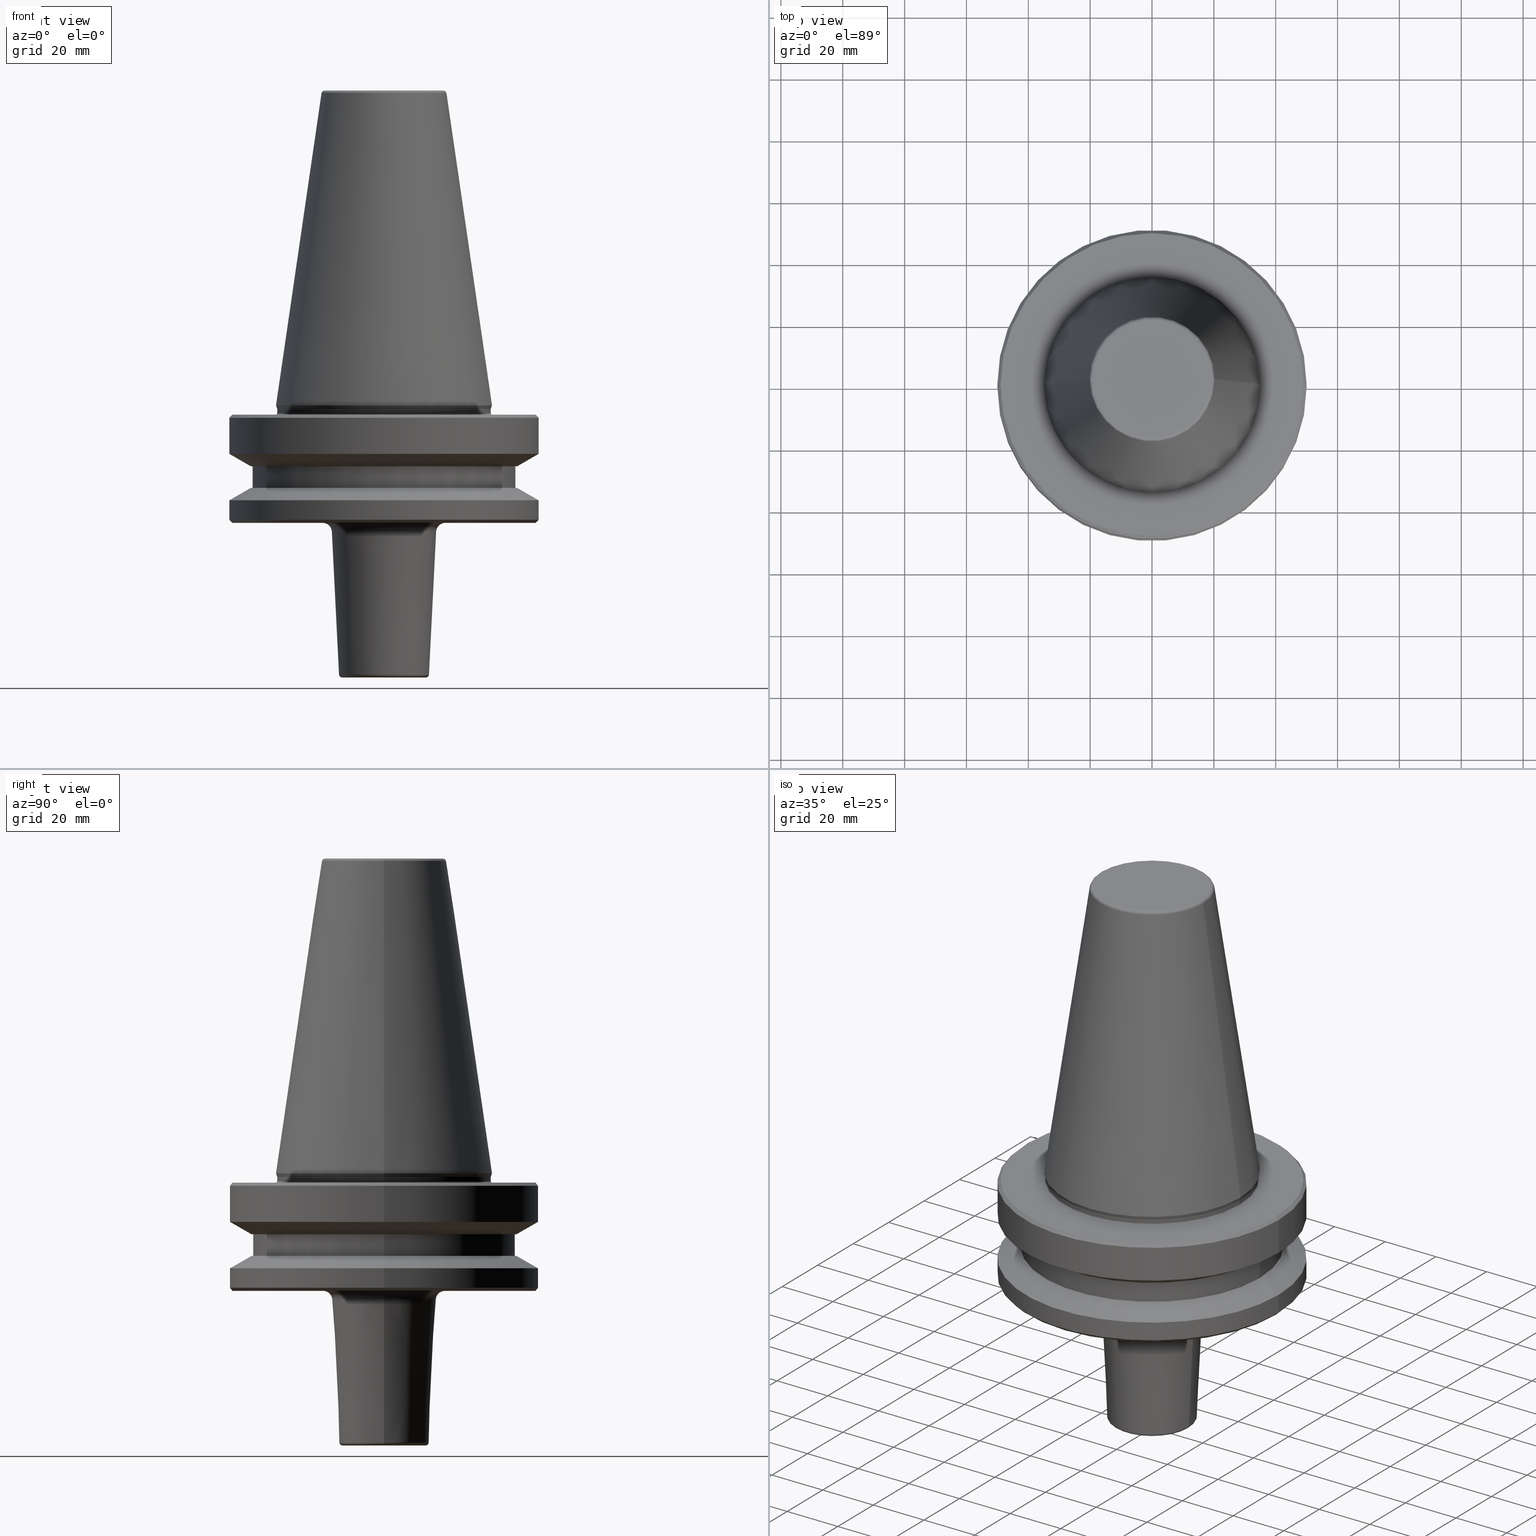
[diagram: canonical four-view strip — front | top / right | iso, engineering-drawing reading convention]
A machine part, canonical four-view strip (front | top / right | iso — engineering-drawing reading convention). The complete STEP part file that produces these views, byte-faithful:
ISO-10303-21;
HEADER;
FILE_DESCRIPTION (( 'STEP AP203' ),
    '1' );
FILE_NAME ('BT50 MCA16 050 AD+B-2.5G 25000 SL.STEP',
    '2019-05-24T11:02:50',
    ( '' ),
    ( '' ),
    'SwSTEP 2.0',
    'SolidWorks 2014',
    '' );
FILE_SCHEMA (( 'CONFIG_CONTROL_DESIGN' ));
ENDSEC;

DATA;
#1 = EDGE_LOOP ( 'NONE', ( #66, #542, #39, #301 ) ) ;
#2 = DIRECTION ( 'NONE',  ( 0.0000000000000000000, -1.000000000000000000, 0.0000000000000000000 ) ) ;
#3 = ORIENTED_EDGE ( 'NONE', *, *, #57, .T. ) ;
#4 = AXIS2_PLACEMENT_3D ( 'NONE', #288, #828, #369 ) ;
#5 = CIRCLE ( 'NONE', #520, 14.54750311915285400 ) ;
#6 = ADVANCED_FACE ( 'NONE', ( #712 ), #521, .T. ) ;
#7 = FACE_BOUND ( 'NONE', #702, .T. ) ;
#8 = EDGE_CURVE ( 'NONE', #555, #228, #406, .T. ) ;
#9 = DIRECTION ( 'NONE',  ( -0.0000000000000000000, -0.0000000000000000000, 1.000000000000000000 ) ) ;
#10 = EDGE_CURVE ( 'NONE', #410, #176, #567, .T. ) ;
#11 = ORIENTED_EDGE ( 'NONE', *, *, #163, .T. ) ;
#12 = CARTESIAN_POINT ( 'NONE',  ( 0.0000000000000000000, 0.0000000000000000000, -2.999999999999988900 ) ) ;
#13 = DIRECTION ( 'NONE',  ( 1.000000000000000000, 0.0000000000000000000, 0.0000000000000000000 ) ) ;
#14 = DIRECTION ( 'NONE',  ( 0.0000000000000000000, 0.0000000000000000000, -1.000000000000000000 ) ) ;
#15 = EDGE_LOOP ( 'NONE', ( #772, #109, #788, #864 ) ) ;
#16 = ORIENTED_EDGE ( 'NONE', *, *, #367, .F. ) ;
#17 = DIRECTION ( 'NONE',  ( 1.224646799147353200E-016, 1.000000000000000000, 0.0000000000000000000 ) ) ;
#18 = VECTOR ( 'NONE', #223, 1000.000000000000000 ) ;
#19 = CC_DESIGN_APPROVAL ( #966, ( #914 ) ) ;
#20 = AXIS2_PLACEMENT_3D ( 'NONE', #639, #172, #709 ) ;
#21 = TOROIDAL_SURFACE ( 'NONE', #292, 19.21428326503027200, 0.9999999999999983300 ) ;
#22 = AXIS2_PLACEMENT_3D ( 'NONE', #47, #586, #157 ) ;
#23 = EDGE_CURVE ( 'NONE', #410, #943, #366, .T. ) ;
#24 = ORIENTED_EDGE ( 'NONE', *, *, #850, .F. ) ;
#25 = VERTEX_POINT ( 'NONE', #165 ) ;
#26 = VECTOR ( 'NONE', #1001, 1000.000000000000000 ) ;
#27 = VECTOR ( 'NONE', #858, 1000.000000000000200 ) ;
#28 = CARTESIAN_POINT ( 'NONE',  ( 0.0000000000000000000, 0.0000000000000000000, -19.70000000000001000 ) ) ;
#29 = DIRECTION ( 'NONE',  ( -0.0000000000000000000, -0.0000000000000000000, 1.000000000000000000 ) ) ;
#30 = COORDINATED_UNIVERSAL_TIME_OFFSET ( 5, 30, .AHEAD. ) ;
#31 = ADVANCED_FACE ( 'NONE', ( #716 ), #967, .T. ) ;
#32 = CALENDAR_DATE ( 2019, 24, 5 ) ;
#33 = AXIS2_PLACEMENT_3D ( 'NONE', #270, #807, #347 ) ;
#34 = ORIENTED_EDGE ( 'NONE', *, *, #640, .F. ) ;
#35 = AXIS2_PLACEMENT_3D ( 'NONE', #620, #156, #696 ) ;
#36 = CIRCLE ( 'NONE', #552, 19.21428326503027200 ) ;
#37 = ADVANCED_FACE ( 'NONE', ( #898 ), #626, .T. ) ;
#38 = ORIENTED_EDGE ( 'NONE', *, *, #975, .F. ) ;
#39 = ORIENTED_EDGE ( 'NONE', *, *, #867, .F. ) ;
#40 = CARTESIAN_POINT ( 'NONE',  ( 13.54875078027501300, 0.0000000000000000000, -87.00000000000002800 ) ) ;
#41 = DIRECTION ( 'NONE',  ( 0.7071067811865474600, 0.0000000000000000000, 0.7071067811865475700 ) ) ;
#42 = EDGE_CURVE ( 'NONE', #127, #151, #457, .T. ) ;
#43 = DIRECTION ( 'NONE',  ( -0.0000000000000000000, -0.0000000000000000000, 1.000000000000000000 ) ) ;
#44 = DIRECTION ( 'NONE',  ( 0.0000000000000000000, 0.0000000000000000000, -1.000000000000000000 ) ) ;
#45 = CARTESIAN_POINT ( 'NONE',  ( 0.0000000000000000000, 0.0000000000000000000, 100.7999999999999800 ) ) ;
#46 = EDGE_LOOP ( 'NONE', ( #119, #102 ) ) ;
#47 = CARTESIAN_POINT ( 'NONE',  ( 0.0000000000000000000, 0.0000000000000000000, -19.70000000000001000 ) ) ;
#48 = CARTESIAN_POINT ( 'NONE',  ( -43.07217782649103600, 5.274820470751785100E-015, -19.70000000000001000 ) ) ;
#49 = DIRECTION ( 'NONE',  ( -1.000000000000000000, 0.0000000000000000000, 0.0000000000000000000 ) ) ;
#50 = CARTESIAN_POINT ( 'NONE',  ( 0.0000000000000000000, 0.0000000000000000000, 101.7999999999999800 ) ) ;
#51 = ORIENTED_EDGE ( 'NONE', *, *, #180, .T. ) ;
#52 = CIRCLE ( 'NONE', #664, 0.9999999999999974500 ) ;
#53 = ORIENTED_EDGE ( 'NONE', *, *, #999, .F. ) ;
#54 = VERTEX_POINT ( 'NONE', #627 ) ;
#55 = DIRECTION ( 'NONE',  ( 1.000000000000000000, 0.0000000000000000000, 0.0000000000000000000 ) ) ;
#56 = AXIS2_PLACEMENT_3D ( 'NONE', #744, #748, #284 ) ;
#57 = EDGE_CURVE ( 'NONE', #808, #394, #884, .T. ) ;
#58 = CARTESIAN_POINT ( 'NONE',  ( -19.85374765917515200, 2.431382852188810900E-015, -38.00000000000000700 ) ) ;
#59 = APPLICATION_PROTOCOL_DEFINITION ( 'international standard', 'config_control_design', 1994, #138 ) ;
#60 = DIRECTION ( 'NONE',  ( -0.0000000000000000000, -0.0000000000000000000, 1.000000000000000000 ) ) ;
#61 = ORIENTED_EDGE ( 'NONE', *, *, #689, .F. ) ;
#62 = PLANE ( 'NONE',  #776 ) ;
#63 = ORIENTED_EDGE ( 'NONE', *, *, #464, .T. ) ;
#64 = EDGE_CURVE ( 'NONE', #183, #817, #291, .T. ) ;
#65 = APPROVAL_ROLE ( '' ) ;
#66 = ORIENTED_EDGE ( 'NONE', *, *, #329, .T. ) ;
#67 = DIRECTION ( 'NONE',  ( 1.000000000000000000, 0.0000000000000000000, 0.0000000000000000000 ) ) ;
#68 = ORIENTED_EDGE ( 'NONE', *, *, #888, .T. ) ;
#69 = DIRECTION ( 'NONE',  ( -0.0000000000000000000, -0.0000000000000000000, 1.000000000000000000 ) ) ;
#70 = EDGE_LOOP ( 'NONE', ( #666, #274, #415, #164 ) ) ;
#71 = CARTESIAN_POINT ( 'NONE',  ( 0.0000000000000000000, 0.0000000000000000000, -38.00000000000002100 ) ) ;
#72 = CARTESIAN_POINT ( 'NONE',  ( -49.00000000000000000, 6.062001655779398500E-015, -38.00000000000002100 ) ) ;
#73 = CC_DESIGN_PERSON_AND_ORGANIZATION_ASSIGNMENT ( #656, #453, ( #914 ) ) ;
#74 = DIRECTION ( 'NONE',  ( 0.0000000000000000000, 0.0000000000000000000, -1.000000000000000000 ) ) ;
#75 = AXIS2_PLACEMENT_3D ( 'NONE', #939, #480, #14 ) ;
#76 = DATE_AND_TIME ( #227, #360 ) ;
#77 = ORIENTED_EDGE ( 'NONE', *, *, #529, .F. ) ;
#78 = CARTESIAN_POINT ( 'NONE',  ( 0.0000000000000000000, 0.0000000000000000000, -87.00000000000002800 ) ) ;
#79 = ORIENTED_EDGE ( 'NONE', *, *, #464, .F. ) ;
#80 = AXIS2_PLACEMENT_3D ( 'NONE', #969, #275, #814 ) ;
#81 = CIRCLE ( 'NONE', #472, 13.54875078027501300 ) ;
#82 = EDGE_CURVE ( 'NONE', #817, #183, #822, .T. ) ;
#83 = ORIENTED_EDGE ( 'NONE', *, *, #888, .F. ) ;
#84 = DIRECTION ( 'NONE',  ( 0.3420201433256682700, 0.0000000000000000000, 0.9396926207859086500 ) ) ;
#85 = EDGE_LOOP ( 'NONE', ( #380, #797 ) ) ;
#86 = VERTEX_POINT ( 'NONE', #907 ) ;
#87 = DIRECTION ( 'NONE',  ( -0.0000000000000000000, -0.0000000000000000000, 1.000000000000000000 ) ) ;
#88 = CIRCLE ( 'NONE', #273, 20.20381605152244500 ) ;
#89 = ORIENTED_EDGE ( 'NONE', *, *, #10, .T. ) ;
#90 = DIRECTION ( 'NONE',  ( -0.0000000000000000000, -0.0000000000000000000, 1.000000000000000000 ) ) ;
#91 = CIRCLE ( 'NONE', #22, 42.50000000000000000 ) ;
#92 = AXIS2_PLACEMENT_3D ( 'NONE', #653, #184, #718 ) ;
#93 = DIRECTION ( 'NONE',  ( 1.000000000000000000, 0.0000000000000000000, 0.0000000000000000000 ) ) ;
#94 = DIRECTION ( 'NONE',  ( -0.0000000000000000000, -0.0000000000000000000, 1.000000000000000000 ) ) ;
#95 = CARTESIAN_POINT ( 'NONE',  ( 43.07217782649103600, 0.0000000000000000000, -19.70000000000001000 ) ) ;
#96 = CARTESIAN_POINT ( 'NONE',  ( 0.0000000000000000000, 0.0000000000000000000, -2.500000000000002200 ) ) ;
#97 = DIRECTION ( 'NONE',  ( 1.000000000000000000, 0.0000000000000000000, 0.0000000000000000000 ) ) ;
#98 = APPROVAL_DATE_TIME ( #573, #966 ) ;
#99 = EDGE_CURVE ( 'NONE', #880, #810, #525, .T. ) ;
#100 = ORIENTED_EDGE ( 'NONE', *, *, #23, .F. ) ;
#101 = DIRECTION ( 'NONE',  ( -0.0000000000000000000, -0.0000000000000000000, 1.000000000000000000 ) ) ;
#102 = ORIENTED_EDGE ( 'NONE', *, *, #559, .T. ) ;
#103 = FACE_OUTER_BOUND ( 'NONE', #85, .T. ) ;
#104 = CONICAL_SURFACE ( 'NONE', #592, 34.92499999999999700, 0.1448138465474120600 ) ;
#105 = CARTESIAN_POINT ( 'NONE',  ( 34.50000000000000000, 0.0000000000000000000, -2.499999999999988500 ) ) ;
#106 = AXIS2_PLACEMENT_3D ( 'NONE', #522, #60, #599 ) ;
#107 = EDGE_CURVE ( 'NONE', #232, #617, #265, .T. ) ;
#108 = DIRECTION ( 'NONE',  ( 1.000000000000000000, 0.0000000000000000000, 0.0000000000000000000 ) ) ;
#109 = ORIENTED_EDGE ( 'NONE', *, *, #952, .T. ) ;
#110 = ADVANCED_FACE ( 'NONE', ( #467 ), #327, .T. ) ;
#111 = DIRECTION ( 'NONE',  ( 1.000000000000000000, 0.0000000000000000000, 0.0000000000000000000 ) ) ;
#112 = FACE_OUTER_BOUND ( 'NONE', #553, .T. ) ;
#113 = ORIENTED_EDGE ( 'NONE', *, *, #82, .T. ) ;
#114 = ORIENTED_EDGE ( 'NONE', *, *, #619, .F. ) ;
#115 = EDGE_CURVE ( 'NONE', #926, #348, #703, .T. ) ;
#116 = ADVANCED_FACE ( 'NONE', ( #112 ), #545, .T. ) ;
#117 = DIRECTION ( 'NONE',  ( -0.0000000000000000000, -0.0000000000000000000, 1.000000000000000000 ) ) ;
#118 = CARTESIAN_POINT ( 'NONE',  ( 49.00000000000000000, 0.0000000000000000000, -38.00000000000002100 ) ) ;
#119 = ORIENTED_EDGE ( 'NONE', *, *, #794, .T. ) ;
#120 = CC_DESIGN_DATE_AND_TIME_ASSIGNMENT ( #76, #988, ( #914 ) ) ;
#121 = ORIENTED_EDGE ( 'NONE', *, *, #444, .T. ) ;
#122 = AXIS2_PLACEMENT_3D ( 'NONE', #481, #941, #247 ) ;
#123 = CARTESIAN_POINT ( 'NONE',  ( 0.0000000000000000000, 0.0000000000000000000, -3.999999999999989800 ) ) ;
#124 = DIRECTION ( 'NONE',  ( 1.000000000000000000, 0.0000000000000000000, 0.0000000000000000000 ) ) ;
#125 = VECTOR ( 'NONE', #166, 999.9999999999998900 ) ;
#126 = VERTEX_POINT ( 'NONE', #173 ) ;
#127 = VERTEX_POINT ( 'NONE', #430 ) ;
#128 = DIRECTION ( 'NONE',  ( -0.8660254037844388200, 1.060575238724907200E-016, 0.4999999999999997200 ) ) ;
#129 = AXIS2_PLACEMENT_3D ( 'NONE', #769, #304, #846 ) ;
#130 = DIRECTION ( 'NONE',  ( 1.000000000000000000, 0.0000000000000000000, 0.0000000000000000000 ) ) ;
#131 = EDGE_CURVE ( 'NONE', #466, #126, #582, .T. ) ;
#132 = COORDINATED_UNIVERSAL_TIME_OFFSET ( 5, 30, .AHEAD. ) ;
#133 = DIRECTION ( 'NONE',  ( -0.0000000000000000000, -0.0000000000000000000, 1.000000000000000000 ) ) ;
#134 = ORIENTED_EDGE ( 'NONE', *, *, #115, .T. ) ;
#135 = CIRCLE ( 'NONE', #986, 50.00000000000000000 ) ;
#136 = LINE ( 'NONE', #298, #786 ) ;
#137 = ADVANCED_FACE ( 'NONE', ( #612 ), #477, .T. ) ;
#138 = APPLICATION_CONTEXT ( 'configuration controlled 3d designs of mechanical parts and assemblies' ) ;
#139 = VERTEX_POINT ( 'NONE', #1002 ) ;
#140 = DIRECTION ( 'NONE',  ( -0.0000000000000000000, -0.0000000000000000000, 1.000000000000000000 ) ) ;
#141 = AXIS2_PLACEMENT_3D ( 'NONE', #263, #506, #579 ) ;
#142 = PERSON_AND_ORGANIZATION_ROLE ( 'design_supplier' ) ;
#143 = CARTESIAN_POINT ( 'NONE',  ( 50.00000000000000000, 6.123233995736766100E-015, -30.69977999677324500 ) ) ;
#144 = AXIS2_PLACEMENT_3D ( 'NONE', #78, #229, #767 ) ;
#145 = DIRECTION ( 'NONE',  ( 0.0000000000000000000, -0.0000000000000000000, 1.000000000000000000 ) ) ;
#146 = FACE_OUTER_BOUND ( 'NONE', #287, .T. ) ;
#147 = CARTESIAN_POINT ( 'NONE',  ( 43.07217782649103600, 0.0000000000000000000, -19.70000000000001000 ) ) ;
#148 = ORIENTED_EDGE ( 'NONE', *, *, #794, .F. ) ;
#149 = CARTESIAN_POINT ( 'NONE',  ( 34.50000000000000000, 0.0000000000000000000, -1.167677903268202300 ) ) ;
#150 = LINE ( 'NONE', #890, #305 ) ;
#151 = VERTEX_POINT ( 'NONE', #642 ) ;
#152 = EDGE_CURVE ( 'NONE', #126, #466, #660, .T. ) ;
#153 = ORIENTED_EDGE ( 'NONE', *, *, #927, .T. ) ;
#154 = CONICAL_SURFACE ( 'NONE', #614, 43.07217782649103600, 1.047197551196598100 ) ;
#155 = LINE ( 'NONE', #778, #499 ) ;
#156 = DIRECTION ( 'NONE',  ( -0.0000000000000000000, -0.0000000000000000000, 1.000000000000000000 ) ) ;
#157 = DIRECTION ( 'NONE',  ( 1.000000000000000000, 0.0000000000000000000, 0.0000000000000000000 ) ) ;
#158 = CIRCLE ( 'NONE', #402, 49.00000000000000000 ) ;
#159 = DIRECTION ( 'NONE',  ( 1.000000000000000000, 0.0000000000000000000, 0.0000000000000000000 ) ) ;
#160 = EDGE_LOOP ( 'NONE', ( #947, #425 ) ) ;
#161 = AXIS2_PLACEMENT_3D ( 'NONE', #824, #133, #210 ) ;
#162 = ORIENTED_EDGE ( 'NONE', *, *, #8, .T. ) ;
#163 = EDGE_CURVE ( 'NONE', #739, #221, #235, .T. ) ;
#164 = ORIENTED_EDGE ( 'NONE', *, *, #511, .F. ) ;
#165 = CARTESIAN_POINT ( 'NONE',  ( 34.92499999999999700, 0.0000000000000000000, 0.0000000000000000000 ) ) ;
#166 = DIRECTION ( 'NONE',  ( -0.3420201433256682700, 4.188538737676986200E-017, 0.9396926207859086500 ) ) ;
#167 = CARTESIAN_POINT ( 'NONE',  ( 0.0000000000000000000, 0.0000000000000000000, -26.69999999999998900 ) ) ;
#168 = EDGE_CURVE ( 'NONE', #512, #532, #752, .T. ) ;
#169 = ORIENTED_EDGE ( 'NONE', *, *, #355, .T. ) ;
#170 = CLOSED_SHELL ( 'NONE', ( #956, #116, #339, #925, #37, #565, #663, #191, #503, #632, #237, #805, #723, #31, #6, #658, #730, #188, #257, #262, #936, #799, #422, #546, #882, #874, #346, #110, #707, #571, #654, #427, #496, #137, #960, #332 ) ) ;
#171 = DIRECTION ( 'NONE',  ( -0.0000000000000000000, -0.0000000000000000000, 1.000000000000000000 ) ) ;
#172 = DIRECTION ( 'NONE',  ( -0.0000000000000000000, -0.0000000000000000000, 1.000000000000000000 ) ) ;
#173 = CARTESIAN_POINT ( 'NONE',  ( -49.00000000000000000, 0.0000000000000000000, -2.999999999999988900 ) ) ;
#174 = ORIENTED_EDGE ( 'NONE', *, *, #482, .T. ) ;
#175 = PRODUCT_DEFINITION_FORMATION_WITH_SPECIFIED_SOURCE ( 'ANY', '', #431, .NOT_KNOWN. ) ;
#176 = VERTEX_POINT ( 'NONE', #303 ) ;
#177 = FACE_OUTER_BOUND ( 'NONE', #484, .T. ) ;
#178 = AXIS2_PLACEMENT_3D ( 'NONE', #861, #784, #955 ) ;
#179 = AXIS2_PLACEMENT_3D ( 'NONE', #470, #2, #540 ) ;
#180 = EDGE_CURVE ( 'NONE', #959, #348, #848, .T. ) ;
#181 = ORIENTED_EDGE ( 'NONE', *, *, #816, .F. ) ;
#182 = DIRECTION ( 'NONE',  ( -0.0000000000000000000, -0.0000000000000000000, 1.000000000000000000 ) ) ;
#183 = VERTEX_POINT ( 'NONE', #105 ) ;
#184 = DIRECTION ( 'NONE',  ( -0.0000000000000000000, -0.0000000000000000000, 1.000000000000000000 ) ) ;
#185 = CIRCLE ( 'NONE', #129, 13.54875078027501300 ) ;
#186 = EDGE_LOOP ( 'NONE', ( #530, #113, #268, #114 ) ) ;
#187 = EDGE_LOOP ( 'NONE', ( #930, #395, #391, #604 ) ) ;
#188 = ADVANCED_FACE ( 'NONE', ( #819 ), #694, .T. ) ;
#189 = CARTESIAN_POINT ( 'NONE',  ( 0.0000000000000000000, 0.0000000000000000000, -3.999999999999989800 ) ) ;
#190 = AXIS2_PLACEMENT_3D ( 'NONE', #426, #887, #433 ) ;
#191 = ADVANCED_FACE ( 'NONE', ( #681 ), #933, .F. ) ;
#192 = PLANE ( 'NONE',  #920 ) ;
#193 = EDGE_LOOP ( 'NONE', ( #314, #650, #350, #465 ) ) ;
#194 = FACE_OUTER_BOUND ( 'NONE', #277, .T. ) ;
#195 = AXIS2_PLACEMENT_3D ( 'NONE', #333, #896, #437 ) ;
#196 = ORIENTED_EDGE ( 'NONE', *, *, #355, .F. ) ;
#197 = CIRCLE ( 'NONE', #491, 19.85374765917515200 ) ;
#198 = ORIENTED_EDGE ( 'NONE', *, *, #10, .F. ) ;
#199 = EDGE_CURVE ( 'NONE', #466, #852, #979, .T. ) ;
#200 = PLANE ( 'NONE',  #80 ) ;
#201 = CARTESIAN_POINT ( 'NONE',  ( -34.50000000000000000, 4.225031457058368900E-015, 124.5046326327850600 ) ) ;
#202 = CARTESIAN_POINT ( 'NONE',  ( -50.00000000000000000, 6.123233995736766100E-015, 124.5046326327850600 ) ) ;
#203 = CARTESIAN_POINT ( 'NONE',  ( 50.00000000000000000, 0.0000000000000000000, -37.00000000000002100 ) ) ;
#204 = DIRECTION ( 'NONE',  ( 1.000000000000000000, 0.0000000000000000000, 0.0000000000000000000 ) ) ;
#205 = DIRECTION ( 'NONE',  ( -0.0000000000000000000, -0.0000000000000000000, 1.000000000000000000 ) ) ;
#206 = LINE ( 'NONE', #202, #980 ) ;
#207 = EDGE_LOOP ( 'NONE', ( #970, #148, #51, #931 ) ) ;
#208 = CIRCLE ( 'NONE', #698, 34.50000000000000000 ) ;
#209 = ORIENTED_EDGE ( 'NONE', *, *, #299, .T. ) ;
#210 = DIRECTION ( 'NONE',  ( 1.000000000000000000, 0.0000000000000000000, 0.0000000000000000000 ) ) ;
#211 = AXIS2_PLACEMENT_3D ( 'NONE', #989, #527, #67 ) ;
#212 = EDGE_CURVE ( 'NONE', #394, #623, #647, .T. ) ;
#213 = DIRECTION ( 'NONE',  ( -0.7071067811865474600, 8.659560562354931600E-017, 0.7071067811865475700 ) ) ;
#214 = MECHANICAL_CONTEXT ( 'NONE', #138, 'mechanical' ) ;
#215 = ORIENTED_EDGE ( 'NONE', *, *, #652, .T. ) ;
#216 = EDGE_CURVE ( 'NONE', #127, #54, #429, .T. ) ;
#217 = PERSON_AND_ORGANIZATION_ROLE ( 'classification_officer' ) ;
#218 = CARTESIAN_POINT ( 'NONE',  ( 50.00000000000000000, 0.0000000000000000000, -15.70022000322675400 ) ) ;
#219 = DIRECTION ( 'NONE',  ( -0.0000000000000000000, -0.0000000000000000000, 1.000000000000000000 ) ) ;
#220 = CONICAL_SURFACE ( 'NONE', #309, 50.00000000000000000, 1.047197551196597200 ) ;
#221 = VERTEX_POINT ( 'NONE', #379 ) ;
#222 = DIRECTION ( 'NONE',  ( 1.000000000000000000, 0.0000000000000000000, 0.0000000000000000000 ) ) ;
#223 = DIRECTION ( 'NONE',  ( 0.7071067811865474600, 8.659560562354931600E-017, -0.7071067811865475700 ) ) ;
#224 = LINE ( 'NONE', #972, #392 ) ;
#225 = APPROVAL ( #526, 'UNSPECIFIED' ) ;
#226 = AXIS2_PLACEMENT_3D ( 'NONE', #96, #408, #108 ) ;
#227 = CALENDAR_DATE ( 2019, 24, 5 ) ;
#228 = VERTEX_POINT ( 'NONE', #611 ) ;
#229 = DIRECTION ( 'NONE',  ( -0.0000000000000000000, -0.0000000000000000000, 1.000000000000000000 ) ) ;
#230 = AXIS2_PLACEMENT_3D ( 'NONE', #306, #851, #393 ) ;
#231 = EDGE_CURVE ( 'NONE', #532, #512, #36, .T. ) ;
#232 = VERTEX_POINT ( 'NONE', #634 ) ;
#233 = CIRCLE ( 'NONE', #179, 1.000000000000000900 ) ;
#234 = ORIENTED_EDGE ( 'NONE', *, *, #492, .T. ) ;
#235 = CIRCLE ( 'NONE', #195, 34.50000000000000000 ) ;
#236 = CARTESIAN_POINT ( 'NONE',  ( -17.00000000000003600, 2.081899558550504600E-015, -38.00000000000000700 ) ) ;
#237 = ADVANCED_FACE ( 'NONE', ( #416 ), #154, .T. ) ;
#238 = AXIS2_PLACEMENT_3D ( 'NONE', #871, #413, #950 ) ;
#239 = DIRECTION ( 'NONE',  ( 0.1443082272673000800, 1.767266086135278300E-017, -0.9895327864921754600 ) ) ;
#240 = DIRECTION ( 'NONE',  ( 1.000000000000000000, 0.0000000000000000000, 0.0000000000000000000 ) ) ;
#241 = ORIENTED_EDGE ( 'NONE', *, *, #411, .T. ) ;
#242 = AXIS2_PLACEMENT_3D ( 'NONE', #50, #588, #130 ) ;
#243 = UNCERTAINTY_MEASURE_WITH_UNIT (LENGTH_MEASURE( 1.000000000000000100E-005 ), #801, 'distance_accuracy_value', 'NONE');
#244 = CIRCLE ( 'NONE', #75, 0.5000000000000004400 ) ;
#245 = CIRCLE ( 'NONE', #826, 0.5000000000000004400 ) ;
#246 = CARTESIAN_POINT ( 'NONE',  ( -50.00000000000000000, 6.123233995736766100E-015, -3.999999999999989800 ) ) ;
#247 = DIRECTION ( 'NONE',  ( 1.000000000000000000, 0.0000000000000000000, 0.0000000000000000000 ) ) ;
#248 = EDGE_CURVE ( 'NONE', #139, #532, #52, .T. ) ;
#249 = VECTOR ( 'NONE', #497, 1000.000000000000000 ) ;
#250 = FACE_OUTER_BOUND ( 'NONE', #734, .T. ) ;
#251 = CONICAL_SURFACE ( 'NONE', #711, 50.00000000000000000, 1.047197551196597200 ) ;
#252 = CARTESIAN_POINT ( 'NONE',  ( 0.0000000000000000000, 0.0000000000000000000, 124.5046326327850600 ) ) ;
#253 = LINE ( 'NONE', #143, #446 ) ;
#254 = EDGE_LOOP ( 'NONE', ( #782, #993, #365, #793 ) ) ;
#255 = CARTESIAN_POINT ( 'NONE',  ( 19.85374765917515200, 0.0000000000000000000, -38.00000000000000700 ) ) ;
#256 = AXIS2_PLACEMENT_3D ( 'NONE', #454, #606, #754 ) ;
#257 = ADVANCED_FACE ( 'NONE', ( #695 ), #251, .T. ) ;
#258 = EDGE_CURVE ( 'NONE', #615, #808, #261, .T. ) ;
#259 = EDGE_LOOP ( 'NONE', ( #893, #198, #450, #905 ) ) ;
#260 = DIRECTION ( 'NONE',  ( 1.000000000000000000, 0.0000000000000000000, 0.0000000000000000000 ) ) ;
#261 = CIRCLE ( 'NONE', #761, 49.00000000000000000 ) ;
#262 = ADVANCED_FACE ( 'NONE', ( #651, #775 ), #192, .F. ) ;
#263 = CARTESIAN_POINT ( 'NONE',  ( 0.0000000000000000000, 0.0000000000000000000, -3.999999999999989800 ) ) ;
#264 = CIRCLE ( 'NONE', #745, 42.50000000000000000 ) ;
#265 = CIRCLE ( 'NONE', #830, 1.000000000000007800 ) ;
#266 = CARTESIAN_POINT ( 'NONE',  ( 0.0000000000000000000, 0.0000000000000000000, -38.00000000000002100 ) ) ;
#267 = EDGE_CURVE ( 'NONE', #221, #674, #334, .T. ) ;
#268 = ORIENTED_EDGE ( 'NONE', *, *, #840, .T. ) ;
#269 = PERSON ( 'UNSPECIFIED', 'UNSPECIFIED', 'UNSPECIFIED', ('UNSPECIFIED'), ('UNSPECIFIED'), ('UNSPECIFIED') ) ;
#270 = CARTESIAN_POINT ( 'NONE',  ( 0.0000000000000000000, 0.0000000000000000000, -30.69977999677324500 ) ) ;
#271 = CARTESIAN_POINT ( 'NONE',  ( -50.00000000000000000, 6.123233995736766100E-015, 124.5046326327850600 ) ) ;
#272 = CC_DESIGN_APPROVAL ( #225, ( #175 ) ) ;
#273 = AXIS2_PLACEMENT_3D ( 'NONE', #638, #171, #708 ) ;
#274 = ORIENTED_EDGE ( 'NONE', *, *, #199, .T. ) ;
#275 = DIRECTION ( 'NONE',  ( 0.0000000000000000000, 0.0000000000000000000, -1.000000000000000000 ) ) ;
#276 = DIRECTION ( 'NONE',  ( -1.000000000000000000, 0.0000000000000000000, 0.0000000000000000000 ) ) ;
#277 = EDGE_LOOP ( 'NONE', ( #400, #965, #300, #906 ) ) ;
#278 = DIRECTION ( 'NONE',  ( -0.0000000000000000000, -0.0000000000000000000, 1.000000000000000000 ) ) ;
#279 = VECTOR ( 'NONE', #128, 1000.000000000000000 ) ;
#280 = DIRECTION ( 'NONE',  ( -0.0000000000000000000, -0.0000000000000000000, 1.000000000000000000 ) ) ;
#281 = EDGE_LOOP ( 'NONE', ( #162, #541, #843, #307 ) ) ;
#282 = EDGE_CURVE ( 'NONE', #852, #407, #818, .T. ) ;
#283 = CARTESIAN_POINT ( 'NONE',  ( 0.0000000000000000000, 0.0000000000000000000, -19.70000000000001000 ) ) ;
#284 = DIRECTION ( 'NONE',  ( 1.000000000000000000, 0.0000000000000000000, 0.0000000000000000000 ) ) ;
#285 = LINE ( 'NONE', #236, #27 ) ;
#286 = APPLICATION_CONTEXT ( 'configuration controlled 3d designs of mechanical parts and assemblies' ) ;
#287 = EDGE_LOOP ( 'NONE', ( #488, #713, #508, #597 ) ) ;
#288 = CARTESIAN_POINT ( 'NONE',  ( 0.0000000000000000000, 0.0000000000000000000, 0.0000000000000000000 ) ) ;
#289 = FACE_OUTER_BOUND ( 'NONE', #876, .T. ) ;
#290 = CARTESIAN_POINT ( 'NONE',  ( 0.0000000000000000000, 0.0000000000000000000, -15.70022000322675400 ) ) ;
#291 = CIRCLE ( 'NONE', #570, 34.50000000000000000 ) ;
#292 = AXIS2_PLACEMENT_3D ( 'NONE', #45, #435, #124 ) ;
#293 = DIRECTION ( 'NONE',  ( -0.0000000000000000000, -0.0000000000000000000, 1.000000000000000000 ) ) ;
#294 = APPROVAL_STATUS ( 'not_yet_approved' ) ;
#295 = AXIS2_PLACEMENT_3D ( 'NONE', #787, #321, #862 ) ;
#296 = CARTESIAN_POINT ( 'NONE',  ( 0.0000000000000000000, 0.0000000000000000000, 124.5046326327850600 ) ) ;
#297 = CARTESIAN_POINT ( 'NONE',  ( 34.50000000000000000, 0.0000000000000000000, 124.5046326327850600 ) ) ;
#298 = CARTESIAN_POINT ( 'NONE',  ( -34.92499999999999700, 0.0000000000000000000, 0.0000000000000000000 ) ) ;
#299 = EDGE_CURVE ( 'NONE', #964, #844, #356, .T. ) ;
#300 = ORIENTED_EDGE ( 'NONE', *, *, #909, .T. ) ;
#301 = ORIENTED_EDGE ( 'NONE', *, *, #310, .F. ) ;
#302 = FACE_OUTER_BOUND ( 'NONE', #774, .T. ) ;
#303 = CARTESIAN_POINT ( 'NONE',  ( 43.07217782649105000, 5.699027233244276800E-015, -26.69999999999998900 ) ) ;
#304 = DIRECTION ( 'NONE',  ( -0.0000000000000000000, -0.0000000000000000000, 1.000000000000000000 ) ) ;
#305 = VECTOR ( 'NONE', #735, 1000.000000000000000 ) ;
#306 = CARTESIAN_POINT ( 'NONE',  ( 0.0000000000000000000, 0.0000000000000000000, -2.999999999999988900 ) ) ;
#307 = ORIENTED_EDGE ( 'NONE', *, *, #390, .F. ) ;
#308 = DIRECTION ( 'NONE',  ( 1.000000000000000000, 0.0000000000000000000, 0.0000000000000000000 ) ) ;
#309 = AXIS2_PLACEMENT_3D ( 'NONE', #375, #836, #685 ) ;
#310 = EDGE_CURVE ( 'NONE', #623, #789, #155, .T. ) ;
#311 = TOROIDAL_SURFACE ( 'NONE', #226, 35.00000000000000000, 0.5000000000000004400 ) ;
#312 = EDGE_LOOP ( 'NONE', ( #781, #498 ) ) ;
#313 = FACE_OUTER_BOUND ( 'NONE', #892, .T. ) ;
#314 = ORIENTED_EDGE ( 'NONE', *, *, #539, .F. ) ;
#315 = CARTESIAN_POINT ( 'NONE',  ( 0.0000000000000000000, 0.0000000000000000000, -3.999999999999989800 ) ) ;
#316 = DIRECTION ( 'NONE',  ( -0.0000000000000000000, -0.0000000000000000000, 1.000000000000000000 ) ) ;
#317 = EDGE_CURVE ( 'NONE', #617, #926, #285, .T. ) ;
#318 = DIRECTION ( 'NONE',  ( 0.0000000000000000000, 0.0000000000000000000, -1.000000000000000000 ) ) ;
#319 = PERSON_AND_ORGANIZATION ( #269, #376 ) ;
#320 = EDGE_LOOP ( 'NONE', ( #516, #121, #490, #551 ) ) ;
#321 = DIRECTION ( 'NONE',  ( 0.0000000000000000000, -1.000000000000000000, 0.0000000000000000000 ) ) ;
#322 = ORIENTED_EDGE ( 'NONE', *, *, #640, .T. ) ;
#323 = CC_DESIGN_PERSON_AND_ORGANIZATION_ASSIGNMENT ( #825, #605, ( #175 ) ) ;
#324 = FACE_OUTER_BOUND ( 'NONE', #831, .T. ) ;
#325 = AXIS2_PLACEMENT_3D ( 'NONE', #509, #43, #583 ) ;
#326 = VECTOR ( 'NONE', #293, 1000.000000000000000 ) ;
#327 = CYLINDRICAL_SURFACE ( 'NONE', #990, 34.50000000000000000 ) ;
#328 = AXIS2_PLACEMENT_3D ( 'NONE', #123, #737, #276 ) ;
#329 = EDGE_CURVE ( 'NONE', #623, #394, #796, .T. ) ;
#330 = DIRECTION ( 'NONE',  ( -0.0000000000000000000, -0.0000000000000000000, 1.000000000000000000 ) ) ;
#331 = APPROVAL_PERSON_ORGANIZATION ( #759, #585, #834 ) ;
#332 = ADVANCED_FACE ( 'NONE', ( #441 ), #765, .F. ) ;
#333 = CARTESIAN_POINT ( 'NONE',  ( 0.0000000000000000000, 0.0000000000000000000, -1.167677903268202300 ) ) ;
#334 = LINE ( 'NONE', #631, #125 ) ;
#335 = ORIENTED_EDGE ( 'NONE', *, *, #199, .F. ) ;
#336 = CARTESIAN_POINT ( 'NONE',  ( 17.00000000000003600, 0.0000000000000000000, -38.00000000000000700 ) ) ;
#337 = ORIENTED_EDGE ( 'NONE', *, *, #168, .F. ) ;
#338 = VECTOR ( 'NONE', #41, 1000.000000000000000 ) ;
#339 = ADVANCED_FACE ( 'NONE', ( #704 ), #897, .T. ) ;
#340 = CARTESIAN_POINT ( 'NONE',  ( 0.0000000000000000000, 0.0000000000000000000, -30.69977999677324500 ) ) ;
#341 =( NAMED_UNIT ( * ) PLANE_ANGLE_UNIT ( ) SI_UNIT ( $, .RADIAN. ) );
#342 = DIRECTION ( 'NONE',  ( 1.224646799147353200E-016, 1.000000000000000000, 0.0000000000000000000 ) ) ;
#343 = AXIS2_PLACEMENT_3D ( 'NONE', #717, #563, #655 ) ;
#344 = AXIS2_PLACEMENT_3D ( 'NONE', #485, #101, #643 ) ;
#345 = DIRECTION ( 'NONE',  ( -0.0000000000000000000, -0.0000000000000000000, 1.000000000000000000 ) ) ;
#346 = ADVANCED_FACE ( 'NONE', ( #289 ), #311, .F. ) ;
#347 = DIRECTION ( 'NONE',  ( 1.000000000000000000, 0.0000000000000000000, 0.0000000000000000000 ) ) ;
#348 = VERTEX_POINT ( 'NONE', #564 ) ;
#349 = FACE_OUTER_BOUND ( 'NONE', #622, .T. ) ;
#350 = ORIENTED_EDGE ( 'NONE', *, *, #310, .T. ) ;
#351 = DIRECTION ( 'NONE',  ( -0.0000000000000000000, -0.0000000000000000000, 1.000000000000000000 ) ) ;
#352 = ORIENTED_EDGE ( 'NONE', *, *, #373, .T. ) ;
#353 = DESIGN_CONTEXT ( 'detailed design', #286, 'design' ) ;
#354 = TOROIDAL_SURFACE ( 'NONE', #951, 19.21428326503027200, 0.9999999999999983300 ) ;
#355 = EDGE_CURVE ( 'NONE', #183, #964, #244, .T. ) ;
#356 = CIRCLE ( 'NONE', #968, 35.00000000000000000 ) ;
#357 = CARTESIAN_POINT ( 'NONE',  ( -50.00000000000000000, 0.0000000000000000000, -3.999999999999989800 ) ) ;
#358 = APPROVAL_PERSON_ORGANIZATION ( #757, #225, #65 ) ;
#359 = DIRECTION ( 'NONE',  ( 1.000000000000000000, 0.0000000000000000000, 0.0000000000000000000 ) ) ;
#360 = LOCAL_TIME ( 16, 32, 50.00000000000000000, #790 ) ;
#361 = CARTESIAN_POINT ( 'NONE',  ( 0.0000000000000000000, 0.0000000000000000000, -40.85018714916832700 ) ) ;
#362 = ORIENTED_EDGE ( 'NONE', *, *, #816, .T. ) ;
#363 = ORIENTED_EDGE ( 'NONE', *, *, #668, .T. ) ;
#364 = AXIS2_PLACEMENT_3D ( 'NONE', #71, #994, #912 ) ;
#365 = ORIENTED_EDGE ( 'NONE', *, *, #163, .F. ) ;
#366 = LINE ( 'NONE', #938, #594 ) ;
#367 = EDGE_CURVE ( 'NONE', #86, #139, #88, .T. ) ;
#368 = APPROVAL_STATUS ( 'not_yet_approved' ) ;
#369 = DIRECTION ( 'NONE',  ( 1.000000000000000000, 0.0000000000000000000, 0.0000000000000000000 ) ) ;
#370 = DIRECTION ( 'NONE',  ( 1.000000000000000000, 0.0000000000000000000, 0.0000000000000000000 ) ) ;
#371 = CONICAL_SURFACE ( 'NONE', #141, 50.00000000000000000, 0.7853981633974482800 ) ;
#372 = DIRECTION ( 'NONE',  ( 1.000000000000000000, 0.0000000000000000000, 0.0000000000000000000 ) ) ;
#373 = EDGE_CURVE ( 'NONE', #86, #25, #837, .T. ) ;
#374 = ORIENTED_EDGE ( 'NONE', *, *, #999, .T. ) ;
#375 = CARTESIAN_POINT ( 'NONE',  ( 0.0000000000000000000, 0.0000000000000000000, -30.69977999677324500 ) ) ;
#376 = ORGANIZATION ( 'UNSPECIFIED', 'UNSPECIFIED', '' ) ;
#377 = DIRECTION ( 'NONE',  ( 1.000000000000000000, 0.0000000000000000000, 0.0000000000000000000 ) ) ;
#378 = CARTESIAN_POINT ( 'NONE',  ( 0.0000000000000000000, 0.0000000000000000000, -38.00000000000000700 ) ) ;
#379 = CARTESIAN_POINT ( 'NONE',  ( -34.50000000000000000, 4.225031457058368900E-015, -1.167677903268202300 ) ) ;
#380 = ORIENTED_EDGE ( 'NONE', *, *, #168, .T. ) ;
#381 = DIRECTION ( 'NONE',  ( 1.224646799147353200E-016, 1.000000000000000000, 0.0000000000000000000 ) ) ;
#382 = ORIENTED_EDGE ( 'NONE', *, *, #652, .F. ) ;
#383 = DIRECTION ( 'NONE',  ( -0.0000000000000000000, -0.0000000000000000000, 1.000000000000000000 ) ) ;
#384 = CONICAL_SURFACE ( 'NONE', #442, 34.50000000000000000, 0.3490658503988654500 ) ;
#385 = CC_DESIGN_PERSON_AND_ORGANIZATION_ASSIGNMENT ( #601, #142, ( #175 ) ) ;
#386 = AXIS2_PLACEMENT_3D ( 'NONE', #28, #351, #889 ) ;
#387 = ORIENTED_EDGE ( 'NONE', *, *, #952, .F. ) ;
#388 = AXIS2_PLACEMENT_3D ( 'NONE', #928, #44, #584 ) ;
#389 = ORIENTED_EDGE ( 'NONE', *, *, #492, .F. ) ;
#390 = EDGE_CURVE ( 'NONE', #555, #714, #957, .T. ) ;
#391 = ORIENTED_EDGE ( 'NONE', *, *, #766, .F. ) ;
#392 = VECTOR ( 'NONE', #84, 999.9999999999998900 ) ;
#393 = DIRECTION ( 'NONE',  ( 1.000000000000000000, 0.0000000000000000000, 0.0000000000000000000 ) ) ;
#394 = VERTEX_POINT ( 'NONE', #945 ) ;
#395 = ORIENTED_EDGE ( 'NONE', *, *, #107, .T. ) ;
#396 = DIRECTION ( 'NONE',  ( -0.8660254037844383700, 0.0000000000000000000, -0.5000000000000004400 ) ) ;
#397 = DIRECTION ( 'NONE',  ( 1.000000000000000000, 0.0000000000000000000, 0.0000000000000000000 ) ) ;
#398 = CONICAL_SURFACE ( 'NONE', #343, 17.00000000000003600, 0.04995839572194248100 ) ;
#399 = DIRECTION ( 'NONE',  ( 1.000000000000000000, 0.0000000000000000000, 0.0000000000000000000 ) ) ;
#400 = ORIENTED_EDGE ( 'NONE', *, *, #42, .F. ) ;
#401 = PERSON_AND_ORGANIZATION ( #269, #376 ) ;
#402 = AXIS2_PLACEMENT_3D ( 'NONE', #872, #418, #953 ) ;
#403 = CARTESIAN_POINT ( 'NONE',  ( 0.0000000000000000000, 0.0000000000000000000, -19.70000000000001000 ) ) ;
#404 = AXIS2_PLACEMENT_3D ( 'NONE', #917, #463, #204 ) ;
#405 = CARTESIAN_POINT ( 'NONE',  ( 0.0000000000000000000, 0.0000000000000000000, 124.5046326327850600 ) ) ;
#406 = CIRCLE ( 'NONE', #473, 43.07217782649103600 ) ;
#407 = VERTEX_POINT ( 'NONE', #246 ) ;
#408 = DIRECTION ( 'NONE',  ( -0.0000000000000000000, -0.0000000000000000000, 1.000000000000000000 ) ) ;
#409 = DIRECTION ( 'NONE',  ( 1.000000000000000000, 0.0000000000000000000, 0.0000000000000000000 ) ) ;
#410 = VERTEX_POINT ( 'NONE', #550 ) ;
#411 = EDGE_CURVE ( 'NONE', #176, #410, #635, .T. ) ;
#412 = ORIENTED_EDGE ( 'NONE', *, *, #699, .T. ) ;
#413 = DIRECTION ( 'NONE',  ( -0.0000000000000000000, -0.0000000000000000000, 1.000000000000000000 ) ) ;
#414 = LINE ( 'NONE', #118, #338 ) ;
#415 = ORIENTED_EDGE ( 'NONE', *, *, #282, .T. ) ;
#416 = FACE_OUTER_BOUND ( 'NONE', #281, .T. ) ;
#417 = ORIENTED_EDGE ( 'NONE', *, *, #428, .T. ) ;
#418 = DIRECTION ( 'NONE',  ( -0.0000000000000000000, -0.0000000000000000000, 1.000000000000000000 ) ) ;
#419 = AXIS2_PLACEMENT_3D ( 'NONE', #841, #381, #918 ) ;
#420 = AXIS2_PLACEMENT_3D ( 'NONE', #479, #94, #13 ) ;
#421 = CARTESIAN_POINT ( 'NONE',  ( 50.00000000000000000, 0.0000000000000000000, 124.5046326327850600 ) ) ;
#422 = ADVANCED_FACE ( 'NONE', ( #250 ), #997, .T. ) ;
#423 = DATE_AND_TIME ( #746, #439 ) ;
#424 = DIRECTION ( 'NONE',  ( 1.224646799147353200E-016, 1.000000000000000000, 0.0000000000000000000 ) ) ;
#425 = ORIENTED_EDGE ( 'NONE', *, *, #216, .F. ) ;
#426 = CARTESIAN_POINT ( 'NONE',  ( 0.0000000000000000000, 35.00000000000000000, -3.000000000000002700 ) ) ;
#427 = ADVANCED_FACE ( 'NONE', ( #103 ), #200, .F. ) ;
#428 = EDGE_CURVE ( 'NONE', #151, #692, #91, .T. ) ;
#429 = CIRCLE ( 'NONE', #505, 42.50000000000000000 ) ;
#430 = CARTESIAN_POINT ( 'NONE',  ( -42.50000000000000000, 5.204748896376250900E-015, -26.69999999999998900 ) ) ;
#431 = PRODUCT ( 'BT50 MCA16 050 AD+B-2.5G 25000 SL', 'BT50 MCA16 050 AD+B-2.5G 25000 SL', '', ( #214 ) ) ;
#432 = ORIENTED_EDGE ( 'NONE', *, *, #850, .T. ) ;
#433 = DIRECTION ( 'NONE',  ( -1.000000000000000000, 0.0000000000000000000, -0.0000000000000000000 ) ) ;
#434 = CYLINDRICAL_SURFACE ( 'NONE', #849, 50.00000000000000000 ) ;
#435 = DIRECTION ( 'NONE',  ( -0.0000000000000000000, -0.0000000000000000000, 1.000000000000000000 ) ) ;
#436 = SECURITY_CLASSIFICATION ( '', '', #684 ) ;
#437 = DIRECTION ( 'NONE',  ( 1.000000000000000000, 0.0000000000000000000, 0.0000000000000000000 ) ) ;
#438 = LOCAL_TIME ( 16, 32, 50.00000000000000000, #770 ) ;
#439 = LOCAL_TIME ( 16, 32, 50.00000000000000000, #829 ) ;
#440 = DIRECTION ( 'NONE',  ( -0.0000000000000000000, -0.0000000000000000000, 1.000000000000000000 ) ) ;
#441 = FACE_OUTER_BOUND ( 'NONE', #207, .T. ) ;
#442 = AXIS2_PLACEMENT_3D ( 'NONE', #839, #610, #222 ) ;
#443 = CONICAL_SURFACE ( 'NONE', #256, 34.50000000000000000, 0.3490658503988654500 ) ;
#444 = EDGE_CURVE ( 'NONE', #232, #880, #185, .T. ) ;
#445 = ORIENTED_EDGE ( 'NONE', *, *, #411, .F. ) ;
#446 = VECTOR ( 'NONE', #677, 1000.000000000000000 ) ;
#447 = DIRECTION ( 'NONE',  ( -1.000000000000000000, 0.0000000000000000000, 0.0000000000000000000 ) ) ;
#448 = CARTESIAN_POINT ( 'NONE',  ( -34.92499999999999700, 4.277078946022131700E-015, 0.0000000000000000000 ) ) ;
#449 = DIRECTION ( 'NONE',  ( -0.0000000000000000000, -0.0000000000000000000, 1.000000000000000000 ) ) ;
#450 = ORIENTED_EDGE ( 'NONE', *, *, #23, .T. ) ;
#451 = CARTESIAN_POINT ( 'NONE',  ( 0.0000000000000000000, 0.0000000000000000000, -2.499999999999988500 ) ) ;
#452 = CARTESIAN_POINT ( 'NONE',  ( 0.0000000000000000000, 0.0000000000000000000, -19.70000000000001000 ) ) ;
#453 = PERSON_AND_ORGANIZATION_ROLE ( 'creator' ) ;
#454 = CARTESIAN_POINT ( 'NONE',  ( 0.0000000000000000000, 0.0000000000000000000, -1.167677903268202300 ) ) ;
#455 = EDGE_LOOP ( 'NONE', ( #89, #241 ) ) ;
#456 = AXIS2_PLACEMENT_3D ( 'NONE', #252, #330, #493 ) ;
#457 = LINE ( 'NONE', #833, #326 ) ;
#458 = CARTESIAN_POINT ( 'NONE',  ( -49.00000000000000000, 6.000769315822030900E-015, -38.00000000000002100 ) ) ;
#459 = CIRCLE ( 'NONE', #211, 14.54750311915285400 ) ;
#460 = AXIS2_PLACEMENT_3D ( 'NONE', #672, #743, #409 ) ;
#461 = DIRECTION ( 'NONE',  ( -0.0000000000000000000, -0.0000000000000000000, 1.000000000000000000 ) ) ;
#462 = DIRECTION ( 'NONE',  ( 1.000000000000000000, 0.0000000000000000000, 0.0000000000000000000 ) ) ;
#463 = DIRECTION ( 'NONE',  ( -0.0000000000000000000, -0.0000000000000000000, 1.000000000000000000 ) ) ;
#464 = EDGE_CURVE ( 'NONE', #86, #512, #233, .T. ) ;
#465 = ORIENTED_EDGE ( 'NONE', *, *, #853, .F. ) ;
#466 = VERTEX_POINT ( 'NONE', #513 ) ;
#467 = FACE_OUTER_BOUND ( 'NONE', #186, .T. ) ;
#468 = ORIENTED_EDGE ( 'NONE', *, *, #927, .F. ) ;
#469 = FACE_OUTER_BOUND ( 'NONE', #562, .T. ) ;
#470 = CARTESIAN_POINT ( 'NONE',  ( 19.21428326503027200, 0.0000000000000000000, 100.7999999999999800 ) ) ;
#471 = CARTESIAN_POINT ( 'NONE',  ( 0.0000000000000000000, 0.0000000000000000000, -26.69999999999998900 ) ) ;
#472 = AXIS2_PLACEMENT_3D ( 'NONE', #904, #449, #985 ) ;
#473 = AXIS2_PLACEMENT_3D ( 'NONE', #452, #908, #308 ) ;
#474 = DIRECTION ( 'NONE',  ( -1.000000000000000000, 0.0000000000000000000, -0.0000000000000000000 ) ) ;
#475 = CYLINDRICAL_SURFACE ( 'NONE', #935, 42.50000000000000000 ) ;
#476 = ORIENTED_EDGE ( 'NONE', *, *, #962, .T. ) ;
#477 = TOROIDAL_SURFACE ( 'NONE', #144, 13.54875078027501300, 1.000000000000007300 ) ;
#478 = ORIENTED_EDGE ( 'NONE', *, *, #511, .T. ) ;
#479 = CARTESIAN_POINT ( 'NONE',  ( 0.0000000000000000000, 0.0000000000000000000, -38.00000000000002100 ) ) ;
#480 = DIRECTION ( 'NONE',  ( 0.0000000000000000000, -1.000000000000000000, 0.0000000000000000000 ) ) ;
#481 = CARTESIAN_POINT ( 'NONE',  ( 0.0000000000000000000, 0.0000000000000000000, -41.00000000000000700 ) ) ;
#482 = EDGE_CURVE ( 'NONE', #739, #25, #224, .T. ) ;
#483 = CARTESIAN_POINT ( 'NONE',  ( -13.54875078027501300, 1.659243427550899800E-015, -87.00000000000002800 ) ) ;
#484 = EDGE_LOOP ( 'NONE', ( #804, #387 ) ) ;
#485 = CARTESIAN_POINT ( 'NONE',  ( 0.0000000000000000000, 0.0000000000000000000, -2.500000000000002200 ) ) ;
#486 = EDGE_LOOP ( 'NONE', ( #659, #389 ) ) ;
#487 = CC_DESIGN_PERSON_AND_ORGANIZATION_ASSIGNMENT ( #401, #217, ( #436 ) ) ;
#488 = ORIENTED_EDGE ( 'NONE', *, *, #559, .F. ) ;
#489 = ORIENTED_EDGE ( 'NONE', *, *, #258, .T. ) ;
#490 = ORIENTED_EDGE ( 'NONE', *, *, #99, .T. ) ;
#491 = AXIS2_PLACEMENT_3D ( 'NONE', #378, #915, #462 ) ;
#492 = EDGE_CURVE ( 'NONE', #844, #964, #895, .T. ) ;
#493 = DIRECTION ( 'NONE',  ( 1.000000000000000000, 0.0000000000000000000, 0.0000000000000000000 ) ) ;
#494 = SHAPE_DEFINITION_REPRESENTATION ( #922, #885 ) ;
#495 = DIRECTION ( 'NONE',  ( 1.000000000000000000, 0.0000000000000000000, 0.0000000000000000000 ) ) ;
#496 = ADVANCED_FACE ( 'NONE', ( #686 ), #624, .T. ) ;
#497 = DIRECTION ( 'NONE',  ( -0.0000000000000000000, -0.0000000000000000000, 1.000000000000000000 ) ) ;
#498 = ORIENTED_EDGE ( 'NONE', *, *, #444, .F. ) ;
#499 = VECTOR ( 'NONE', #87, 1000.000000000000000 ) ;
#500 = FACE_OUTER_BOUND ( 'NONE', #648, .T. ) ;
#501 = DIRECTION ( 'NONE',  ( -1.000000000000000000, 0.0000000000000000000, 0.0000000000000000000 ) ) ;
#502 = FACE_OUTER_BOUND ( 'NONE', #720, .T. ) ;
#503 = ADVANCED_FACE ( 'NONE', ( #877 ), #682, .T. ) ;
#504 = AXIS2_PLACEMENT_3D ( 'NONE', #795, #182, #495 ) ;
#505 = AXIS2_PLACEMENT_3D ( 'NONE', #167, #706, #240 ) ;
#506 = DIRECTION ( 'NONE',  ( 0.0000000000000000000, 0.0000000000000000000, -1.000000000000000000 ) ) ;
#507 = ORIENTED_EDGE ( 'NONE', *, *, #909, .F. ) ;
#508 = ORIENTED_EDGE ( 'NONE', *, *, #577, .F. ) ;
#509 = CARTESIAN_POINT ( 'NONE',  ( 0.0000000000000000000, 0.0000000000000000000, -26.69999999999998900 ) ) ;
#510 = CARTESIAN_POINT ( 'NONE',  ( -16.85749064254162000, 2.064447195704505600E-015, -40.85018714916832700 ) ) ;
#511 = EDGE_CURVE ( 'NONE', #126, #407, #641, .T. ) ;
#512 = VERTEX_POINT ( 'NONE', #973 ) ;
#513 = CARTESIAN_POINT ( 'NONE',  ( 49.00000000000000000, 6.062001655779398500E-015, -2.999999999999988900 ) ) ;
#514 = ORIENTED_EDGE ( 'NONE', *, *, #715, .T. ) ;
#515 = DIRECTION ( 'NONE',  ( 0.0000000000000000000, 0.0000000000000000000, -1.000000000000000000 ) ) ;
#516 = ORIENTED_EDGE ( 'NONE', *, *, #107, .F. ) ;
#517 = DIRECTION ( 'NONE',  ( -0.0000000000000000000, -0.0000000000000000000, 1.000000000000000000 ) ) ;
#518 = DIRECTION ( 'NONE',  ( 1.000000000000000000, 0.0000000000000000000, 0.0000000000000000000 ) ) ;
#519 = CONICAL_SURFACE ( 'NONE', #364, 49.00000000000000000, 0.7853981633974482800 ) ;
#520 = AXIS2_PLACEMENT_3D ( 'NONE', #600, #140, #680 ) ;
#521 = CONICAL_SURFACE ( 'NONE', #420, 49.00000000000000000, 0.7853981633974482800 ) ;
#522 = CARTESIAN_POINT ( 'NONE',  ( 0.0000000000000000000, 0.0000000000000000000, -26.69999999999998900 ) ) ;
#523 = AXIS2_PLACEMENT_3D ( 'NONE', #471, #9, #543 ) ;
#524 = FACE_BOUND ( 'NONE', #46, .T. ) ;
#525 = CIRCLE ( 'NONE', #777, 1.000000000000000900 ) ;
#526 = APPROVAL_STATUS ( 'not_yet_approved' ) ;
#527 = DIRECTION ( 'NONE',  ( -0.0000000000000000000, -0.0000000000000000000, 1.000000000000000000 ) ) ;
#528 = CARTESIAN_POINT ( 'NONE',  ( 0.0000000000000000000, 0.0000000000000000000, -38.00000000000000700 ) ) ;
#529 = EDGE_CURVE ( 'NONE', #228, #733, #982, .T. ) ;
#530 = ORIENTED_EDGE ( 'NONE', *, *, #946, .F. ) ;
#531 = APPROVAL_PERSON_ORGANIZATION ( #645, #966, #910 ) ;
#532 = VERTEX_POINT ( 'NONE', #894 ) ;
#533 = VECTOR ( 'NONE', #239, 1000.000000000000000 ) ;
#534 = CC_DESIGN_DATE_AND_TIME_ASSIGNMENT ( #423, #756, ( #436 ) ) ;
#535 = ORIENTED_EDGE ( 'NONE', *, *, #593, .F. ) ;
#536 = ORIENTED_EDGE ( 'NONE', *, *, #231, .F. ) ;
#537 = AXIS2_PLACEMENT_3D ( 'NONE', #669, #741, #159 ) ;
#538 = VECTOR ( 'NONE', #875, 1000.000000000000200 ) ;
#539 = EDGE_CURVE ( 'NONE', #394, #943, #206, .T. ) ;
#540 = DIRECTION ( 'NONE',  ( 0.0000000000000000000, 0.0000000000000000000, -1.000000000000000000 ) ) ;
#541 = ORIENTED_EDGE ( 'NONE', *, *, #529, .T. ) ;
#542 = ORIENTED_EDGE ( 'NONE', *, *, #539, .T. ) ;
#543 = DIRECTION ( 'NONE',  ( 1.000000000000000000, 0.0000000000000000000, 0.0000000000000000000 ) ) ;
#544 = FACE_OUTER_BOUND ( 'NONE', #15, .T. ) ;
#545 = CONICAL_SURFACE ( 'NONE', #881, 17.00000000000003600, 0.04995839572194248100 ) ;
#546 = ADVANCED_FACE ( 'NONE', ( #302 ), #948, .T. ) ;
#547 = DIRECTION ( 'NONE',  ( -0.0000000000000000000, -0.0000000000000000000, 1.000000000000000000 ) ) ;
#548 = VECTOR ( 'NONE', #665, 1000.000000000000000 ) ;
#549 = AXIS2_PLACEMENT_3D ( 'NONE', #189, #728, #260 ) ;
#550 = CARTESIAN_POINT ( 'NONE',  ( -43.07217782649105000, 0.0000000000000000000, -26.69999999999998900 ) ) ;
#551 = ORIENTED_EDGE ( 'NONE', *, *, #699, .F. ) ;
#552 = AXIS2_PLACEMENT_3D ( 'NONE', #940, #29, #569 ) ;
#553 = EDGE_LOOP ( 'NONE', ( #607, #983, #134, #923 ) ) ;
#554 = DIRECTION ( 'NONE',  ( -1.000000000000000000, 1.224646799147354400E-016, 0.0000000000000000000 ) ) ;
#555 = VERTEX_POINT ( 'NONE', #147 ) ;
#556 = CARTESIAN_POINT ( 'NONE',  ( 50.00000000000000000, 6.123233995736766100E-015, -3.999999999999989800 ) ) ;
#557 = VECTOR ( 'NONE', #213, 1000.000000000000000 ) ;
#558 = ORIENTED_EDGE ( 'NONE', *, *, #152, .F. ) ;
#559 = EDGE_CURVE ( 'NONE', #705, #959, #197, .T. ) ;
#560 = CARTESIAN_POINT ( 'NONE',  ( -50.00000000000000000, 6.123233995736766100E-015, -30.69977999677324500 ) ) ;
#561 = CYLINDRICAL_SURFACE ( 'NONE', #161, 34.50000000000000000 ) ;
#562 = EDGE_LOOP ( 'NONE', ( #335, #558, #478, #374 ) ) ;
#563 = DIRECTION ( 'NONE',  ( -0.0000000000000000000, -0.0000000000000000000, 1.000000000000000000 ) ) ;
#564 = CARTESIAN_POINT ( 'NONE',  ( 16.85749064254162000, 0.0000000000000000000, -40.85018714916832700 ) ) ;
#565 = ADVANCED_FACE ( 'NONE', ( #857 ), #384, .T. ) ;
#566 = ORIENTED_EDGE ( 'NONE', *, *, #42, .T. ) ;
#567 = CIRCLE ( 'NONE', #523, 43.07217782649105000 ) ;
#568 = AXIS2_PLACEMENT_3D ( 'NONE', #290, #832, #370 ) ;
#569 = DIRECTION ( 'NONE',  ( 1.000000000000000000, 0.0000000000000000000, 0.0000000000000000000 ) ) ;
#570 = AXIS2_PLACEMENT_3D ( 'NONE', #451, #987, #372 ) ;
#571 = ADVANCED_FACE ( 'NONE', ( #324 ), #104, .T. ) ;
#572 = CARTESIAN_POINT ( 'NONE',  ( 0.0000000000000000000, 42.50000000000000000, -26.70000000000000300 ) ) ;
#573 = DATE_AND_TIME ( #803, #575 ) ;
#574 = CARTESIAN_POINT ( 'NONE',  ( 0.0000000000000000000, 0.0000000000000000000, -30.69977999677324500 ) ) ;
#575 = LOCAL_TIME ( 16, 32, 50.00000000000000000, #132 ) ;
#576 = ORIENTED_EDGE ( 'NONE', *, *, #619, .T. ) ;
#577 = EDGE_CURVE ( 'NONE', #348, #926, #736, .T. ) ;
#578 = DIRECTION ( 'NONE',  ( 0.0000000000000000000, -1.000000000000000000, 0.0000000000000000000 ) ) ;
#579 = DIRECTION ( 'NONE',  ( -1.000000000000000000, 0.0000000000000000000, 0.0000000000000000000 ) ) ;
#580 = FACE_OUTER_BOUND ( 'NONE', #254, .T. ) ;
#581 = FACE_BOUND ( 'NONE', #486, .T. ) ;
#582 = CIRCLE ( 'NONE', #35, 49.00000000000000000 ) ;
#583 = DIRECTION ( 'NONE',  ( 1.000000000000000000, 0.0000000000000000000, 0.0000000000000000000 ) ) ;
#584 = DIRECTION ( 'NONE',  ( -1.000000000000000000, 0.0000000000000000000, -0.0000000000000000000 ) ) ;
#585 = APPROVAL ( #294, 'UNSPECIFIED' ) ;
#586 = DIRECTION ( 'NONE',  ( -0.0000000000000000000, -0.0000000000000000000, 1.000000000000000000 ) ) ;
#587 = DIRECTION ( 'NONE',  ( -0.1443082272673000800, 0.0000000000000000000, -0.9895327864921754600 ) ) ;
#588 = DIRECTION ( 'NONE',  ( -0.0000000000000000000, -0.0000000000000000000, 1.000000000000000000 ) ) ;
#589 = CIRCLE ( 'NONE', #238, 20.20381605152244500 ) ;
#590 = EDGE_LOOP ( 'NONE', ( #1003, #432, #234, #196 ) ) ;
#591 = ORIENTED_EDGE ( 'NONE', *, *, #267, .F. ) ;
#592 = AXIS2_PLACEMENT_3D ( 'NONE', #998, #74, #688 ) ;
#593 = EDGE_CURVE ( 'NONE', #139, #674, #136, .T. ) ;
#594 = VECTOR ( 'NONE', #396, 1000.000000000000000 ) ;
#595 = EDGE_LOOP ( 'NONE', ( #646, #916 ) ) ;
#596 = DIRECTION ( 'NONE',  ( 1.000000000000000000, 0.0000000000000000000, 0.0000000000000000000 ) ) ;
#597 = ORIENTED_EDGE ( 'NONE', *, *, #180, .F. ) ;
#598 = CIRCLE ( 'NONE', #419, 2.999999999999999100 ) ;
#599 = DIRECTION ( 'NONE',  ( 1.000000000000000000, 0.0000000000000000000, 0.0000000000000000000 ) ) ;
#600 = CARTESIAN_POINT ( 'NONE',  ( 0.0000000000000000000, 0.0000000000000000000, -87.04993761694393600 ) ) ;
#601 = PERSON_AND_ORGANIZATION ( #269, #376 ) ;
#602 = CARTESIAN_POINT ( 'NONE',  ( 0.0000000000000000000, 0.0000000000000000000, 0.0000000000000000000 ) ) ;
#603 = DIRECTION ( 'NONE',  ( 1.000000000000000000, 0.0000000000000000000, 0.0000000000000000000 ) ) ;
#604 = ORIENTED_EDGE ( 'NONE', *, *, #99, .F. ) ;
#605 = PERSON_AND_ORGANIZATION_ROLE ( 'creator' ) ;
#606 = DIRECTION ( 'NONE',  ( -0.0000000000000000000, -0.0000000000000000000, 1.000000000000000000 ) ) ;
#607 = ORIENTED_EDGE ( 'NONE', *, *, #766, .T. ) ;
#608 = DIRECTION ( 'NONE',  ( 1.000000000000000000, 0.0000000000000000000, 0.0000000000000000000 ) ) ;
#609 =( GEOMETRIC_REPRESENTATION_CONTEXT ( 3 ) GLOBAL_UNCERTAINTY_ASSIGNED_CONTEXT ( ( #243 ) ) GLOBAL_UNIT_ASSIGNED_CONTEXT ( ( #801, #341, #984 ) ) REPRESENTATION_CONTEXT ( 'NONE', 'WORKASPACE' ) );
#610 = DIRECTION ( 'NONE',  ( -0.0000000000000000000, -0.0000000000000000000, 1.000000000000000000 ) ) ;
#611 = CARTESIAN_POINT ( 'NONE',  ( -43.07217782649103600, 5.699027233244276000E-015, -19.70000000000001000 ) ) ;
#612 = FACE_OUTER_BOUND ( 'NONE', #320, .T. ) ;
#613 = CARTESIAN_POINT ( 'NONE',  ( 50.00000000000000000, 0.0000000000000000000, -30.69977999677324500 ) ) ;
#614 = AXIS2_PLACEMENT_3D ( 'NONE', #403, #780, #111 ) ;
#615 = VERTEX_POINT ( 'NONE', #618 ) ;
#616 = CARTESIAN_POINT ( 'NONE',  ( 14.54750311915285900, 0.0000000000000000000, -87.04993761694393600 ) ) ;
#617 = VERTEX_POINT ( 'NONE', #691 ) ;
#618 = CARTESIAN_POINT ( 'NONE',  ( 49.00000000000000000, 0.0000000000000000000, -38.00000000000002100 ) ) ;
#619 = EDGE_CURVE ( 'NONE', #221, #739, #208, .T. ) ;
#620 = CARTESIAN_POINT ( 'NONE',  ( 0.0000000000000000000, 0.0000000000000000000, -2.999999999999988900 ) ) ;
#621 = CALENDAR_DATE ( 2019, 24, 5 ) ;
#622 = EDGE_LOOP ( 'NONE', ( #771, #412, #476, #763 ) ) ;
#623 = VERTEX_POINT ( 'NONE', #203 ) ;
#624 = PLANE ( 'NONE',  #388 ) ;
#625 = VECTOR ( 'NONE', #813, 1000.000000000000000 ) ;
#626 = CONICAL_SURFACE ( 'NONE', #630, 34.92499999999999700, 0.1448138465474120600 ) ;
#627 = CARTESIAN_POINT ( 'NONE',  ( 42.50000000000000000, 0.0000000000000000000, -26.69999999999998900 ) ) ;
#628 = AXIS2_PLACEMENT_3D ( 'NONE', #528, #69, #608 ) ;
#629 = LOCAL_TIME ( 16, 32, 50.00000000000000000, #30 ) ;
#630 = AXIS2_PLACEMENT_3D ( 'NONE', #602, #683, #755 ) ;
#631 = CARTESIAN_POINT ( 'NONE',  ( -34.50000000000000000, 4.225031457058368900E-015, -1.167677903268202300 ) ) ;
#632 = ADVANCED_FACE ( 'NONE', ( #500 ), #434, .T. ) ;
#633 = LINE ( 'NONE', #336, #538 ) ;
#634 = CARTESIAN_POINT ( 'NONE',  ( -13.54875078027501300, 1.720399370298284500E-015, -88.00000000000005700 ) ) ;
#635 = CIRCLE ( 'NONE', #325, 43.07217782649105000 ) ;
#636 = CIRCLE ( 'NONE', #568, 50.00000000000000000 ) ;
#637 = CARTESIAN_POINT ( 'NONE',  ( 0.0000000000000000000, 0.0000000000000000000, 124.5046326327850600 ) ) ;
#638 = CARTESIAN_POINT ( 'NONE',  ( 0.0000000000000000000, 0.0000000000000000000, 100.9443082272672900 ) ) ;
#639 = CARTESIAN_POINT ( 'NONE',  ( 0.0000000000000000000, 0.0000000000000000000, -37.00000000000002100 ) ) ;
#640 = EDGE_CURVE ( 'NONE', #228, #555, #868, .T. ) ;
#641 = LINE ( 'NONE', #357, #662 ) ;
#642 = CARTESIAN_POINT ( 'NONE',  ( -42.50000000000000000, 5.204748896376250900E-015, -19.70000000000001000 ) ) ;
#643 = DIRECTION ( 'NONE',  ( 1.000000000000000000, 0.0000000000000000000, 0.0000000000000000000 ) ) ;
#644 = CC_DESIGN_APPROVAL ( #585, ( #436 ) ) ;
#645 = PERSON_AND_ORGANIZATION ( #269, #376 ) ;
#646 = ORIENTED_EDGE ( 'NONE', *, *, #152, .T. ) ;
#647 = CIRCLE ( 'NONE', #404, 50.00000000000000000 ) ;
#648 = EDGE_LOOP ( 'NONE', ( #697, #68, #996, #38 ) ) ;
#649 = AXIS2_PLACEMENT_3D ( 'NONE', #974, #515, #49 ) ;
#650 = ORIENTED_EDGE ( 'NONE', *, *, #212, .T. ) ;
#651 = FACE_BOUND ( 'NONE', #160, .T. ) ;
#652 = EDGE_CURVE ( 'NONE', #692, #151, #264, .T. ) ;
#653 = CARTESIAN_POINT ( 'NONE',  ( 0.0000000000000000000, 0.0000000000000000000, -2.999999999999988900 ) ) ;
#654 = ADVANCED_FACE ( 'NONE', ( #313 ), #354, .T. ) ;
#655 = DIRECTION ( 'NONE',  ( 1.000000000000000000, 0.0000000000000000000, 0.0000000000000000000 ) ) ;
#656 = PERSON_AND_ORGANIZATION ( #269, #376 ) ;
#657 = CARTESIAN_POINT ( 'NONE',  ( 0.0000000000000000000, 0.0000000000000000000, 0.0000000000000000000 ) ) ;
#658 = ADVANCED_FACE ( 'NONE', ( #524, #177 ), #675, .F. ) ;
#659 = ORIENTED_EDGE ( 'NONE', *, *, #299, .F. ) ;
#660 = CIRCLE ( 'NONE', #92, 49.00000000000000000 ) ;
#661 = DIRECTION ( 'NONE',  ( 1.000000000000000000, 0.0000000000000000000, 0.0000000000000000000 ) ) ;
#662 = VECTOR ( 'NONE', #815, 1000.000000000000000 ) ;
#663 = ADVANCED_FACE ( 'NONE', ( #580 ), #561, .T. ) ;
#664 = AXIS2_PLACEMENT_3D ( 'NONE', #879, #424, #961 ) ;
#665 = DIRECTION ( 'NONE',  ( -0.0000000000000000000, -0.0000000000000000000, 1.000000000000000000 ) ) ;
#666 = ORIENTED_EDGE ( 'NONE', *, *, #131, .F. ) ;
#667 = ORIENTED_EDGE ( 'NONE', *, *, #901, .F. ) ;
#668 = EDGE_CURVE ( 'NONE', #54, #127, #971, .T. ) ;
#669 = CARTESIAN_POINT ( 'NONE',  ( 0.0000000000000000000, 0.0000000000000000000, 124.5046326327850600 ) ) ;
#670 = DIRECTION ( 'NONE',  ( 1.000000000000000000, 0.0000000000000000000, 0.0000000000000000000 ) ) ;
#671 = ORIENTED_EDGE ( 'NONE', *, *, #248, .F. ) ;
#672 = CARTESIAN_POINT ( 'NONE',  ( 0.0000000000000000000, 0.0000000000000000000, 124.5046326327850600 ) ) ;
#673 = CIRCLE ( 'NONE', #878, 34.92499999999999700 ) ;
#674 = VERTEX_POINT ( 'NONE', #448 ) ;
#675 = PLANE ( 'NONE',  #56 ) ;
#676 = DIRECTION ( 'NONE',  ( 1.000000000000000000, 0.0000000000000000000, 0.0000000000000000000 ) ) ;
#677 = DIRECTION ( 'NONE',  ( 0.8660254037844383700, 1.060575238724906500E-016, -0.5000000000000004400 ) ) ;
#678 = AXIS2_PLACEMENT_3D ( 'NONE', #637, #316, #603 ) ;
#679 = ORIENTED_EDGE ( 'NONE', *, *, #785, .F. ) ;
#680 = DIRECTION ( 'NONE',  ( 1.000000000000000000, 0.0000000000000000000, 0.0000000000000000000 ) ) ;
#681 = FACE_OUTER_BOUND ( 'NONE', #590, .T. ) ;
#682 = CONICAL_SURFACE ( 'NONE', #328, 50.00000000000000000, 0.7853981633974482800 ) ;
#683 = DIRECTION ( 'NONE',  ( 0.0000000000000000000, 0.0000000000000000000, -1.000000000000000000 ) ) ;
#684 = SECURITY_CLASSIFICATION_LEVEL ( 'unclassified' ) ;
#685 = DIRECTION ( 'NONE',  ( -1.000000000000000000, 0.0000000000000000000, 0.0000000000000000000 ) ) ;
#686 = FACE_OUTER_BOUND ( 'NONE', #312, .T. ) ;
#687 = DIRECTION ( 'NONE',  ( 1.000000000000000000, 0.0000000000000000000, 0.0000000000000000000 ) ) ;
#688 = DIRECTION ( 'NONE',  ( -1.000000000000000000, 0.0000000000000000000, 0.0000000000000000000 ) ) ;
#689 = EDGE_CURVE ( 'NONE', #25, #674, #911, .T. ) ;
#690 = CARTESIAN_POINT ( 'NONE',  ( -35.00000000000000000, 4.286263797015737300E-015, -2.999999999999995600 ) ) ;
#691 = CARTESIAN_POINT ( 'NONE',  ( -14.54750311915285900, 1.781555313045669000E-015, -87.04993761694393600 ) ) ;
#692 = VERTEX_POINT ( 'NONE', #773 ) ;
#693 = CC_DESIGN_SECURITY_CLASSIFICATION ( #436, ( #175 ) ) ;
#694 = CYLINDRICAL_SURFACE ( 'NONE', #460, 50.00000000000000000 ) ;
#695 = FACE_OUTER_BOUND ( 'NONE', #259, .T. ) ;
#696 = DIRECTION ( 'NONE',  ( 1.000000000000000000, 0.0000000000000000000, 0.0000000000000000000 ) ) ;
#697 = ORIENTED_EDGE ( 'NONE', *, *, #800, .T. ) ;
#698 = AXIS2_PLACEMENT_3D ( 'NONE', #899, #440, #976 ) ;
#699 = EDGE_CURVE ( 'NONE', #617, #810, #459, .T. ) ;
#700 = LINE ( 'NONE', #421, #249 ) ;
#701 = ORIENTED_EDGE ( 'NONE', *, *, #329, .F. ) ;
#702 = EDGE_LOOP ( 'NONE', ( #215, #417 ) ) ;
#703 = CIRCLE ( 'NONE', #937, 16.85749064254161700 ) ;
#704 = FACE_OUTER_BOUND ( 'NONE', #187, .T. ) ;
#705 = VERTEX_POINT ( 'NONE', #58 ) ;
#706 = DIRECTION ( 'NONE',  ( -0.0000000000000000000, -0.0000000000000000000, 1.000000000000000000 ) ) ;
#707 = ADVANCED_FACE ( 'NONE', ( #721 ), #443, .T. ) ;
#708 = DIRECTION ( 'NONE',  ( 1.000000000000000000, 0.0000000000000000000, 0.0000000000000000000 ) ) ;
#709 = DIRECTION ( 'NONE',  ( 1.000000000000000000, 0.0000000000000000000, 0.0000000000000000000 ) ) ;
#710 = CYLINDRICAL_SURFACE ( 'NONE', #456, 42.50000000000000000 ) ;
#711 = AXIS2_PLACEMENT_3D ( 'NONE', #340, #725, #501 ) ;
#712 = FACE_OUTER_BOUND ( 'NONE', #758, .T. ) ;
#713 = ORIENTED_EDGE ( 'NONE', *, *, #732, .T. ) ;
#714 = VERTEX_POINT ( 'NONE', #218 ) ;
#715 = EDGE_CURVE ( 'NONE', #176, #789, #253, .T. ) ;
#716 = FACE_OUTER_BOUND ( 'NONE', #1, .T. ) ;
#717 = CARTESIAN_POINT ( 'NONE',  ( 0.0000000000000000000, 0.0000000000000000000, -38.00000000000000700 ) ) ;
#718 = DIRECTION ( 'NONE',  ( 1.000000000000000000, 0.0000000000000000000, 0.0000000000000000000 ) ) ;
#719 = CARTESIAN_POINT ( 'NONE',  ( 35.00000000000000000, 0.0000000000000000000, -2.999999999999995600 ) ) ;
#720 = EDGE_LOOP ( 'NONE', ( #445, #514, #749, #100 ) ) ;
#721 = FACE_OUTER_BOUND ( 'NONE', #903, .T. ) ;
#722 = AXIS2_PLACEMENT_3D ( 'NONE', #913, #461, #995 ) ;
#723 = ADVANCED_FACE ( 'NONE', ( #502 ), #220, .T. ) ;
#724 = VECTOR ( 'NONE', #783, 1000.000000000000000 ) ;
#725 = DIRECTION ( 'NONE',  ( 0.0000000000000000000, 0.0000000000000000000, -1.000000000000000000 ) ) ;
#726 = EDGE_LOOP ( 'NONE', ( #16, #352, #791, #535 ) ) ;
#727 = AXIS2_PLACEMENT_3D ( 'NONE', #806, #345, #886 ) ;
#728 = DIRECTION ( 'NONE',  ( -0.0000000000000000000, -0.0000000000000000000, 1.000000000000000000 ) ) ;
#729 = CARTESIAN_POINT ( 'NONE',  ( 50.00000000000000000, 0.0000000000000000000, -3.999999999999989800 ) ) ;
#730 = ADVANCED_FACE ( 'NONE', ( #544 ), #519, .T. ) ;
#731 = CARTESIAN_POINT ( 'NONE',  ( 13.54875078027501300, 0.0000000000000000000, -88.00000000000005700 ) ) ;
#732 = EDGE_CURVE ( 'NONE', #705, #926, #598, .T. ) ;
#733 = VERTEX_POINT ( 'NONE', #760 ) ;
#734 = EDGE_LOOP ( 'NONE', ( #77, #322, #992, #679 ) ) ;
#735 = DIRECTION ( 'NONE',  ( -0.0000000000000000000, -0.0000000000000000000, 1.000000000000000000 ) ) ;
#736 = CIRCLE ( 'NONE', #649, 16.85749064254161700 ) ;
#737 = DIRECTION ( 'NONE',  ( 0.0000000000000000000, 0.0000000000000000000, -1.000000000000000000 ) ) ;
#738 = ORIENTED_EDGE ( 'NONE', *, *, #593, .T. ) ;
#739 = VERTEX_POINT ( 'NONE', #149 ) ;
#740 = PRODUCT_RELATED_PRODUCT_CATEGORY ( 'detail', '', ( #431 ) ) ;
#741 = DIRECTION ( 'NONE',  ( -0.0000000000000000000, -0.0000000000000000000, 1.000000000000000000 ) ) ;
#742 = CARTESIAN_POINT ( 'NONE',  ( 0.0000000000000000000, 0.0000000000000000000, 124.5046326327850600 ) ) ;
#743 = DIRECTION ( 'NONE',  ( -0.0000000000000000000, -0.0000000000000000000, 1.000000000000000000 ) ) ;
#744 = CARTESIAN_POINT ( 'NONE',  ( 0.0000000000000000000, 49.00000000000000000, -38.00000000000000700 ) ) ;
#745 = AXIS2_PLACEMENT_3D ( 'NONE', #978, #517, #55 ) ;
#746 = CALENDAR_DATE ( 2019, 24, 5 ) ;
#747 = EDGE_CURVE ( 'NONE', #880, #232, #81, .T. ) ;
#748 = DIRECTION ( 'NONE',  ( 0.0000000000000000000, -0.0000000000000000000, 1.000000000000000000 ) ) ;
#749 = ORIENTED_EDGE ( 'NONE', *, *, #867, .T. ) ;
#750 = LINE ( 'NONE', #271, #625 ) ;
#751 = ORIENTED_EDGE ( 'NONE', *, *, #267, .T. ) ;
#752 = CIRCLE ( 'NONE', #242, 19.21428326503027200 ) ;
#753 = PERSON_AND_ORGANIZATION_ROLE ( 'design_owner' ) ;
#754 = DIRECTION ( 'NONE',  ( 1.000000000000000000, 0.0000000000000000000, 0.0000000000000000000 ) ) ;
#755 = DIRECTION ( 'NONE',  ( -1.000000000000000000, 0.0000000000000000000, 0.0000000000000000000 ) ) ;
#756 = DATE_TIME_ROLE ( 'classification_date' ) ;
#757 = PERSON_AND_ORGANIZATION ( #269, #376 ) ;
#758 = EDGE_LOOP ( 'NONE', ( #489, #3, #701, #667 ) ) ;
#759 = PERSON_AND_ORGANIZATION ( #269, #376 ) ;
#760 = CARTESIAN_POINT ( 'NONE',  ( -50.00000000000000000, 6.123233995736766900E-015, -15.70022000322675400 ) ) ;
#761 = AXIS2_PLACEMENT_3D ( 'NONE', #266, #90, #397 ) ;
#762 = CARTESIAN_POINT ( 'NONE',  ( -34.50000000000000000, 4.255647627037052700E-015, -2.499999999999988500 ) ) ;
#763 = ORIENTED_EDGE ( 'NONE', *, *, #577, .T. ) ;
#764 = FACE_OUTER_BOUND ( 'NONE', #869, .T. ) ;
#765 = TOROIDAL_SURFACE ( 'NONE', #122, 19.85374765917515200, 3.000000000000000000 ) ;
#766 = EDGE_CURVE ( 'NONE', #810, #617, #5, .T. ) ;
#767 = DIRECTION ( 'NONE',  ( 1.000000000000000000, 0.0000000000000000000, 0.0000000000000000000 ) ) ;
#768 = APPROVAL_DATE_TIME ( #865, #585 ) ;
#769 = CARTESIAN_POINT ( 'NONE',  ( 0.0000000000000000000, 0.0000000000000000000, -88.00000000000005700 ) ) ;
#770 = COORDINATED_UNIVERSAL_TIME_OFFSET ( 5, 30, .AHEAD. ) ;
#771 = ORIENTED_EDGE ( 'NONE', *, *, #317, .F. ) ;
#772 = ORIENTED_EDGE ( 'NONE', *, *, #57, .F. ) ;
#773 = CARTESIAN_POINT ( 'NONE',  ( 42.50000000000000000, 0.0000000000000000000, -19.70000000000001000 ) ) ;
#774 = EDGE_LOOP ( 'NONE', ( #83, #924, #847, #53 ) ) ;
#775 = FACE_OUTER_BOUND ( 'NONE', #455, .T. ) ;
#776 = AXIS2_PLACEMENT_3D ( 'NONE', #991, #145, #687 ) ;
#777 = AXIS2_PLACEMENT_3D ( 'NONE', #40, #578, #318 ) ;
#778 = CARTESIAN_POINT ( 'NONE',  ( 50.00000000000000000, 0.0000000000000000000, 124.5046326327850600 ) ) ;
#779 = CARTESIAN_POINT ( 'NONE',  ( 34.92499999999999700, 4.277078946022130900E-015, 0.0000000000000000000 ) ) ;
#780 = DIRECTION ( 'NONE',  ( -0.0000000000000000000, -0.0000000000000000000, 1.000000000000000000 ) ) ;
#781 = ORIENTED_EDGE ( 'NONE', *, *, #747, .F. ) ;
#782 = ORIENTED_EDGE ( 'NONE', *, *, #64, .T. ) ;
#783 = DIRECTION ( 'NONE',  ( 0.8660254037844388200, 0.0000000000000000000, 0.4999999999999997200 ) ) ;
#784 = DIRECTION ( 'NONE',  ( -0.0000000000000000000, -0.0000000000000000000, 1.000000000000000000 ) ) ;
#785 = EDGE_CURVE ( 'NONE', #733, #714, #636, .T. ) ;
#786 = VECTOR ( 'NONE', #587, 1000.000000000000000 ) ;
#787 = CARTESIAN_POINT ( 'NONE',  ( 19.85374765917515200, 0.0000000000000000000, -41.00000000000000700 ) ) ;
#788 = ORIENTED_EDGE ( 'NONE', *, *, #901, .T. ) ;
#789 = VERTEX_POINT ( 'NONE', #613 ) ;
#790 = COORDINATED_UNIVERSAL_TIME_OFFSET ( 5, 30, .AHEAD. ) ;
#791 = ORIENTED_EDGE ( 'NONE', *, *, #689, .T. ) ;
#792 = AXIS2_PLACEMENT_3D ( 'NONE', #283, #820, #359 ) ;
#793 = ORIENTED_EDGE ( 'NONE', *, *, #840, .F. ) ;
#794 = EDGE_CURVE ( 'NONE', #959, #705, #821, .T. ) ;
#795 = CARTESIAN_POINT ( 'NONE',  ( 0.0000000000000000000, 0.0000000000000000000, -41.00000000000000700 ) ) ;
#796 = CIRCLE ( 'NONE', #20, 50.00000000000000000 ) ;
#797 = ORIENTED_EDGE ( 'NONE', *, *, #231, .T. ) ;
#798 = DIRECTION ( 'NONE',  ( 0.0000000000000000000, 0.0000000000000000000, 1.000000000000000000 ) ) ;
#799 = ADVANCED_FACE ( 'NONE', ( #1000, #7 ), #62, .F. ) ;
#800 = EDGE_CURVE ( 'NONE', #714, #733, #835, .T. ) ;
#801 =( LENGTH_UNIT ( ) NAMED_UNIT ( * ) SI_UNIT ( .MILLI., .METRE. ) );
#802 = CARTESIAN_POINT ( 'NONE',  ( -35.00000000000000000, 4.286263797015736500E-015, -2.500000000000002200 ) ) ;
#803 = CALENDAR_DATE ( 2019, 24, 5 ) ;
#804 = ORIENTED_EDGE ( 'NONE', *, *, #258, .F. ) ;
#805 = ADVANCED_FACE ( 'NONE', ( #764 ), #475, .T. ) ;
#806 = CARTESIAN_POINT ( 'NONE',  ( 0.0000000000000000000, 0.0000000000000000000, -2.499999999999988500 ) ) ;
#807 = DIRECTION ( 'NONE',  ( -0.0000000000000000000, -0.0000000000000000000, 1.000000000000000000 ) ) ;
#808 = VERTEX_POINT ( 'NONE', #72 ) ;
#809 = AXIS2_PLACEMENT_3D ( 'NONE', #657, #798, #676 ) ;
#810 = VERTEX_POINT ( 'NONE', #616 ) ;
#811 = ORIENTED_EDGE ( 'NONE', *, *, #248, .T. ) ;
#812 = MANIFOLD_SOLID_BREP ( 'Fillet1', #170 ) ;
#813 = DIRECTION ( 'NONE',  ( -0.0000000000000000000, -0.0000000000000000000, 1.000000000000000000 ) ) ;
#814 = DIRECTION ( 'NONE',  ( -1.000000000000000000, 0.0000000000000000000, -0.0000000000000000000 ) ) ;
#815 = DIRECTION ( 'NONE',  ( -0.7071067811865474600, 0.0000000000000000000, -0.7071067811865475700 ) ) ;
#816 = EDGE_CURVE ( 'NONE', #674, #25, #673, .T. ) ;
#817 = VERTEX_POINT ( 'NONE', #762 ) ;
#818 = CIRCLE ( 'NONE', #863, 50.00000000000000000 ) ;
#819 = FACE_OUTER_BOUND ( 'NONE', #193, .T. ) ;
#820 = DIRECTION ( 'NONE',  ( -0.0000000000000000000, -0.0000000000000000000, 1.000000000000000000 ) ) ;
#821 = CIRCLE ( 'NONE', #628, 19.85374765917515200 ) ;
#822 = CIRCLE ( 'NONE', #727, 34.50000000000000000 ) ;
#823 = CARTESIAN_POINT ( 'NONE',  ( 0.0000000000000000000, 0.0000000000000000000, -38.00000000000000700 ) ) ;
#824 = CARTESIAN_POINT ( 'NONE',  ( 0.0000000000000000000, 0.0000000000000000000, 124.5046326327850600 ) ) ;
#825 = PERSON_AND_ORGANIZATION ( #269, #376 ) ;
#826 = AXIS2_PLACEMENT_3D ( 'NONE', #802, #342, #883 ) ;
#827 = APPLICATION_PROTOCOL_DEFINITION ( 'international standard', 'config_control_design', 1994, #286 ) ;
#828 = DIRECTION ( 'NONE',  ( -0.0000000000000000000, -0.0000000000000000000, 1.000000000000000000 ) ) ;
#829 = COORDINATED_UNIVERSAL_TIME_OFFSET ( 5, 30, .AHEAD. ) ;
#830 = AXIS2_PLACEMENT_3D ( 'NONE', #483, #17, #554 ) ;
#831 = EDGE_LOOP ( 'NONE', ( #856, #468, #738, #362 ) ) ;
#832 = DIRECTION ( 'NONE',  ( -0.0000000000000000000, -0.0000000000000000000, 1.000000000000000000 ) ) ;
#833 = CARTESIAN_POINT ( 'NONE',  ( -42.50000000000000000, 5.204748896376250900E-015, 124.5046326327850600 ) ) ;
#834 = APPROVAL_ROLE ( '' ) ;
#835 = CIRCLE ( 'NONE', #722, 50.00000000000000000 ) ;
#836 = DIRECTION ( 'NONE',  ( 0.0000000000000000000, 0.0000000000000000000, -1.000000000000000000 ) ) ;
#837 = LINE ( 'NONE', #779, #533 ) ;
#838 = ORIENTED_EDGE ( 'NONE', *, *, #482, .F. ) ;
#839 = CARTESIAN_POINT ( 'NONE',  ( 0.0000000000000000000, 0.0000000000000000000, -1.167677903268202300 ) ) ;
#840 = EDGE_CURVE ( 'NONE', #183, #739, #958, .T. ) ;
#841 = CARTESIAN_POINT ( 'NONE',  ( -19.85374765917515200, 2.431382852188810900E-015, -41.00000000000000700 ) ) ;
#842 = CARTESIAN_POINT ( 'NONE',  ( 0.0000000000000000000, 0.0000000000000000000, 0.0000000000000000000 ) ) ;
#843 = ORIENTED_EDGE ( 'NONE', *, *, #800, .F. ) ;
#844 = VERTEX_POINT ( 'NONE', #690 ) ;
#845 = ORIENTED_EDGE ( 'NONE', *, *, #367, .T. ) ;
#846 = DIRECTION ( 'NONE',  ( 1.000000000000000000, 0.0000000000000000000, 0.0000000000000000000 ) ) ;
#847 = ORIENTED_EDGE ( 'NONE', *, *, #975, .T. ) ;
#848 = CIRCLE ( 'NONE', #295, 3.000000000000002700 ) ;
#849 = AXIS2_PLACEMENT_3D ( 'NONE', #742, #280, #670 ) ;
#850 = EDGE_CURVE ( 'NONE', #817, #844, #245, .T. ) ;
#851 = DIRECTION ( 'NONE',  ( -0.0000000000000000000, -0.0000000000000000000, 1.000000000000000000 ) ) ;
#852 = VERTEX_POINT ( 'NONE', #729 ) ;
#853 = EDGE_CURVE ( 'NONE', #943, #789, #135, .T. ) ;
#854 = ORIENTED_EDGE ( 'NONE', *, *, #8, .F. ) ;
#855 = DIRECTION ( 'NONE',  ( -0.0000000000000000000, -0.0000000000000000000, 1.000000000000000000 ) ) ;
#856 = ORIENTED_EDGE ( 'NONE', *, *, #373, .F. ) ;
#857 = FACE_OUTER_BOUND ( 'NONE', #944, .T. ) ;
#858 = DIRECTION ( 'NONE',  ( -0.04993761694389194100, 6.115594274738389200E-018, 0.9987523388778446500 ) ) ;
#859 = FACE_OUTER_BOUND ( 'NONE', #595, .T. ) ;
#860 = CC_DESIGN_PERSON_AND_ORGANIZATION_ASSIGNMENT ( #319, #753, ( #431 ) ) ;
#861 = CARTESIAN_POINT ( 'NONE',  ( 0.0000000000000000000, 0.0000000000000000000, -87.00000000000002800 ) ) ;
#862 = DIRECTION ( 'NONE',  ( 0.0000000000000000000, 0.0000000000000000000, -1.000000000000000000 ) ) ;
#863 = AXIS2_PLACEMENT_3D ( 'NONE', #315, #855, #399 ) ;
#864 = ORIENTED_EDGE ( 'NONE', *, *, #212, .F. ) ;
#865 = DATE_AND_TIME ( #32, #438 ) ;
#866 = APPROVAL_DATE_TIME ( #919, #225 ) ;
#867 = EDGE_CURVE ( 'NONE', #789, #943, #870, .T. ) ;
#868 = CIRCLE ( 'NONE', #792, 43.07217782649103600 ) ;
#869 = EDGE_LOOP ( 'NONE', ( #363, #566, #382, #507 ) ) ;
#870 = CIRCLE ( 'NONE', #33, 50.00000000000000000 ) ;
#871 = CARTESIAN_POINT ( 'NONE',  ( 0.0000000000000000000, 0.0000000000000000000, 100.9443082272672900 ) ) ;
#872 = CARTESIAN_POINT ( 'NONE',  ( 0.0000000000000000000, 0.0000000000000000000, -38.00000000000002100 ) ) ;
#873 = LINE ( 'NONE', #201, #548 ) ;
#874 = ADVANCED_FACE ( 'NONE', ( #581, #859 ), #963, .F. ) ;
#875 = DIRECTION ( 'NONE',  ( 0.04993761694389194100, 0.0000000000000000000, 0.9987523388778446500 ) ) ;
#876 = EDGE_LOOP ( 'NONE', ( #24, #949, #169, #209 ) ) ;
#877 = FACE_OUTER_BOUND ( 'NONE', #70, .T. ) ;
#878 = AXIS2_PLACEMENT_3D ( 'NONE', #842, #383, #921 ) ;
#879 = CARTESIAN_POINT ( 'NONE',  ( -19.21428326503027200, 2.353071049842987900E-015, 100.7999999999999800 ) ) ;
#880 = VERTEX_POINT ( 'NONE', #731 ) ;
#881 = AXIS2_PLACEMENT_3D ( 'NONE', #823, #981, #518 ) ;
#882 = ADVANCED_FACE ( 'NONE', ( #469 ), #371, .T. ) ;
#883 = DIRECTION ( 'NONE',  ( -1.000000000000000000, 1.224646799147349500E-016, 0.0000000000000000000 ) ) ;
#884 = LINE ( 'NONE', #458, #557 ) ;
#885 = ADVANCED_BREP_SHAPE_REPRESENTATION ( 'BT50 MCA16 050 AD+B-2.5G 25000 SL', ( #812, #809 ), #609 ) ;
#886 = DIRECTION ( 'NONE',  ( 1.000000000000000000, 0.0000000000000000000, 0.0000000000000000000 ) ) ;
#887 = DIRECTION ( 'NONE',  ( 0.0000000000000000000, 0.0000000000000000000, -1.000000000000000000 ) ) ;
#888 = EDGE_CURVE ( 'NONE', #733, #407, #750, .T. ) ;
#889 = DIRECTION ( 'NONE',  ( 1.000000000000000000, 0.0000000000000000000, 0.0000000000000000000 ) ) ;
#890 = CARTESIAN_POINT ( 'NONE',  ( 42.50000000000000000, 0.0000000000000000000, 124.5046326327850600 ) ) ;
#891 = TOROIDAL_SURFACE ( 'NONE', #504, 19.85374765917515200, 3.000000000000000000 ) ;
#892 = EDGE_LOOP ( 'NONE', ( #671, #153, #63, #536 ) ) ;
#893 = ORIENTED_EDGE ( 'NONE', *, *, #715, .F. ) ;
#894 = CARTESIAN_POINT ( 'NONE',  ( -19.21428326503027200, 2.413662457824437800E-015, 101.7999999999999800 ) ) ;
#895 = CIRCLE ( 'NONE', #230, 35.00000000000000000 ) ;
#896 = DIRECTION ( 'NONE',  ( -0.0000000000000000000, -0.0000000000000000000, 1.000000000000000000 ) ) ;
#897 = TOROIDAL_SURFACE ( 'NONE', #178, 13.54875078027501300, 1.000000000000007300 ) ;
#898 = FACE_OUTER_BOUND ( 'NONE', #726, .T. ) ;
#899 = CARTESIAN_POINT ( 'NONE',  ( 0.0000000000000000000, 0.0000000000000000000, -1.167677903268202300 ) ) ;
#900 = CARTESIAN_POINT ( 'NONE',  ( 0.0000000000000000000, 0.0000000000000000000, 100.7999999999999800 ) ) ;
#901 = EDGE_CURVE ( 'NONE', #615, #623, #414, .T. ) ;
#902 = DIRECTION ( 'NONE',  ( 0.0000000000000000000, 0.0000000000000000000, -1.000000000000000000 ) ) ;
#903 = EDGE_LOOP ( 'NONE', ( #591, #576, #174, #181 ) ) ;
#904 = CARTESIAN_POINT ( 'NONE',  ( 0.0000000000000000000, 0.0000000000000000000, -88.00000000000005700 ) ) ;
#905 = ORIENTED_EDGE ( 'NONE', *, *, #853, .T. ) ;
#906 = ORIENTED_EDGE ( 'NONE', *, *, #428, .F. ) ;
#907 = CARTESIAN_POINT ( 'NONE',  ( 20.20381605152244500, 3.375666405914009100E-015, 100.9443082272672900 ) ) ;
#908 = DIRECTION ( 'NONE',  ( -0.0000000000000000000, -0.0000000000000000000, 1.000000000000000000 ) ) ;
#909 = EDGE_CURVE ( 'NONE', #54, #692, #150, .T. ) ;
#910 = APPROVAL_ROLE ( '' ) ;
#911 = CIRCLE ( 'NONE', #4, 34.92499999999999700 ) ;
#912 = DIRECTION ( 'NONE',  ( 1.000000000000000000, 0.0000000000000000000, 0.0000000000000000000 ) ) ;
#913 = CARTESIAN_POINT ( 'NONE',  ( 0.0000000000000000000, 0.0000000000000000000, -15.70022000322675400 ) ) ;
#914 = PRODUCT_DEFINITION ( 'UNKNOWN', '', #175, #353 ) ;
#915 = DIRECTION ( 'NONE',  ( -0.0000000000000000000, -0.0000000000000000000, 1.000000000000000000 ) ) ;
#916 = ORIENTED_EDGE ( 'NONE', *, *, #131, .T. ) ;
#917 = CARTESIAN_POINT ( 'NONE',  ( 0.0000000000000000000, 0.0000000000000000000, -37.00000000000002100 ) ) ;
#918 = DIRECTION ( 'NONE',  ( -1.000000000000000000, 1.224646799147353500E-016, 0.0000000000000000000 ) ) ;
#919 = DATE_AND_TIME ( #621, #629 ) ;
#920 = AXIS2_PLACEMENT_3D ( 'NONE', #572, #932, #474 ) ;
#921 = DIRECTION ( 'NONE',  ( 1.000000000000000000, 0.0000000000000000000, 0.0000000000000000000 ) ) ;
#922 = PRODUCT_DEFINITION_SHAPE ( 'NONE', 'NONE',  #914 ) ;
#923 = ORIENTED_EDGE ( 'NONE', *, *, #962, .F. ) ;
#924 = ORIENTED_EDGE ( 'NONE', *, *, #785, .T. ) ;
#925 = ADVANCED_FACE ( 'NONE', ( #977 ), #21, .T. ) ;
#926 = VERTEX_POINT ( 'NONE', #510 ) ;
#927 = EDGE_CURVE ( 'NONE', #139, #86, #589, .T. ) ;
#928 = CARTESIAN_POINT ( 'NONE',  ( 0.0000000000000000000, -9.013711646874676300E-014, -88.00000000000002800 ) ) ;
#929 = CIRCLE ( 'NONE', #549, 50.00000000000000000 ) ;
#930 = ORIENTED_EDGE ( 'NONE', *, *, #747, .T. ) ;
#931 = ORIENTED_EDGE ( 'NONE', *, *, #115, .F. ) ;
#932 = DIRECTION ( 'NONE',  ( 0.0000000000000000000, 0.0000000000000000000, -1.000000000000000000 ) ) ;
#933 = TOROIDAL_SURFACE ( 'NONE', #344, 35.00000000000000000, 0.5000000000000004400 ) ;
#934 = EDGE_LOOP ( 'NONE', ( #845, #811, #337, #79 ) ) ;
#935 = AXIS2_PLACEMENT_3D ( 'NONE', #296, #219, #377 ) ;
#936 = ADVANCED_FACE ( 'NONE', ( #194 ), #710, .T. ) ;
#937 = AXIS2_PLACEMENT_3D ( 'NONE', #361, #902, #447 ) ;
#938 = CARTESIAN_POINT ( 'NONE',  ( -50.00000000000000000, 0.0000000000000000000, -30.69977999677324500 ) ) ;
#939 = CARTESIAN_POINT ( 'NONE',  ( 35.00000000000000000, 0.0000000000000000000, -2.500000000000002200 ) ) ;
#940 = CARTESIAN_POINT ( 'NONE',  ( 0.0000000000000000000, 0.0000000000000000000, 101.7999999999999800 ) ) ;
#941 = DIRECTION ( 'NONE',  ( -0.0000000000000000000, -0.0000000000000000000, 1.000000000000000000 ) ) ;
#942 = DIRECTION ( 'NONE',  ( -0.0000000000000000000, -0.0000000000000000000, 1.000000000000000000 ) ) ;
#943 = VERTEX_POINT ( 'NONE', #560 ) ;
#944 = EDGE_LOOP ( 'NONE', ( #11, #751, #61, #838 ) ) ;
#945 = CARTESIAN_POINT ( 'NONE',  ( -50.00000000000000000, 6.123233995736766100E-015, -37.00000000000002100 ) ) ;
#946 = EDGE_CURVE ( 'NONE', #817, #221, #873, .T. ) ;
#947 = ORIENTED_EDGE ( 'NONE', *, *, #668, .F. ) ;
#948 = CYLINDRICAL_SURFACE ( 'NONE', #537, 50.00000000000000000 ) ;
#949 = ORIENTED_EDGE ( 'NONE', *, *, #64, .F. ) ;
#950 = DIRECTION ( 'NONE',  ( 1.000000000000000000, 0.0000000000000000000, 0.0000000000000000000 ) ) ;
#951 = AXIS2_PLACEMENT_3D ( 'NONE', #900, #205, #596 ) ;
#952 = EDGE_CURVE ( 'NONE', #808, #615, #158, .T. ) ;
#953 = DIRECTION ( 'NONE',  ( 1.000000000000000000, 0.0000000000000000000, 0.0000000000000000000 ) ) ;
#954 = EDGE_LOOP ( 'NONE', ( #854, #34 ) ) ;
#955 = DIRECTION ( 'NONE',  ( 1.000000000000000000, 0.0000000000000000000, 0.0000000000000000000 ) ) ;
#956 = ADVANCED_FACE ( 'NONE', ( #146 ), #891, .F. ) ;
#957 = LINE ( 'NONE', #95, #724 ) ;
#958 = LINE ( 'NONE', #297, #26 ) ;
#959 = VERTEX_POINT ( 'NONE', #255 ) ;
#960 = ADVANCED_FACE ( 'NONE', ( #349 ), #398, .T. ) ;
#961 = DIRECTION ( 'NONE',  ( -1.000000000000000000, 1.224646799147353700E-016, 0.0000000000000000000 ) ) ;
#962 = EDGE_CURVE ( 'NONE', #810, #348, #633, .T. ) ;
#963 = PLANE ( 'NONE',  #190 ) ;
#964 = VERTEX_POINT ( 'NONE', #719 ) ;
#965 = ORIENTED_EDGE ( 'NONE', *, *, #216, .T. ) ;
#966 = APPROVAL ( #368, 'UNSPECIFIED' ) ;
#967 = CYLINDRICAL_SURFACE ( 'NONE', #678, 50.00000000000000000 ) ;
#968 = AXIS2_PLACEMENT_3D ( 'NONE', #12, #547, #93 ) ;
#969 = CARTESIAN_POINT ( 'NONE',  ( 0.0000000000000000000, 0.0000000000000000000, 101.8000000000000000 ) ) ;
#970 = ORIENTED_EDGE ( 'NONE', *, *, #732, .F. ) ;
#971 = CIRCLE ( 'NONE', #106, 42.50000000000000000 ) ;
#972 = CARTESIAN_POINT ( 'NONE',  ( 34.50000000000000000, 0.0000000000000000000, -1.167677903268202300 ) ) ;
#973 = CARTESIAN_POINT ( 'NONE',  ( 19.21428326503027200, 0.0000000000000000000, 101.7999999999999800 ) ) ;
#974 = CARTESIAN_POINT ( 'NONE',  ( 0.0000000000000000000, 0.0000000000000000000, -40.85018714916832700 ) ) ;
#975 = EDGE_CURVE ( 'NONE', #714, #852, #700, .T. ) ;
#976 = DIRECTION ( 'NONE',  ( 1.000000000000000000, 0.0000000000000000000, 0.0000000000000000000 ) ) ;
#977 = FACE_OUTER_BOUND ( 'NONE', #934, .T. ) ;
#978 = CARTESIAN_POINT ( 'NONE',  ( 0.0000000000000000000, 0.0000000000000000000, -19.70000000000001000 ) ) ;
#979 = LINE ( 'NONE', #556, #18 ) ;
#980 = VECTOR ( 'NONE', #278, 1000.000000000000000 ) ;
#981 = DIRECTION ( 'NONE',  ( -0.0000000000000000000, -0.0000000000000000000, 1.000000000000000000 ) ) ;
#982 = LINE ( 'NONE', #48, #279 ) ;
#983 = ORIENTED_EDGE ( 'NONE', *, *, #317, .T. ) ;
#984 =( NAMED_UNIT ( * ) SI_UNIT ( $, .STERADIAN. ) SOLID_ANGLE_UNIT ( ) );
#985 = DIRECTION ( 'NONE',  ( 1.000000000000000000, 0.0000000000000000000, 0.0000000000000000000 ) ) ;
#986 = AXIS2_PLACEMENT_3D ( 'NONE', #574, #117, #661 ) ;
#987 = DIRECTION ( 'NONE',  ( -0.0000000000000000000, -0.0000000000000000000, 1.000000000000000000 ) ) ;
#988 = DATE_TIME_ROLE ( 'creation_date' ) ;
#989 = CARTESIAN_POINT ( 'NONE',  ( 0.0000000000000000000, 0.0000000000000000000, -87.04993761694393600 ) ) ;
#990 = AXIS2_PLACEMENT_3D ( 'NONE', #405, #942, #97 ) ;
#991 = CARTESIAN_POINT ( 'NONE',  ( 0.0000000000000000000, 43.07217782649103600, -19.70000000000000300 ) ) ;
#992 = ORIENTED_EDGE ( 'NONE', *, *, #390, .T. ) ;
#993 = ORIENTED_EDGE ( 'NONE', *, *, #946, .T. ) ;
#994 = DIRECTION ( 'NONE',  ( -0.0000000000000000000, -0.0000000000000000000, 1.000000000000000000 ) ) ;
#995 = DIRECTION ( 'NONE',  ( 1.000000000000000000, 0.0000000000000000000, 0.0000000000000000000 ) ) ;
#996 = ORIENTED_EDGE ( 'NONE', *, *, #282, .F. ) ;
#997 = CONICAL_SURFACE ( 'NONE', #386, 43.07217782649103600, 1.047197551196598100 ) ;
#998 = CARTESIAN_POINT ( 'NONE',  ( 0.0000000000000000000, 0.0000000000000000000, 0.0000000000000000000 ) ) ;
#999 = EDGE_CURVE ( 'NONE', #407, #852, #929, .T. ) ;
#1000 = FACE_OUTER_BOUND ( 'NONE', #954, .T. ) ;
#1001 = DIRECTION ( 'NONE',  ( -0.0000000000000000000, -0.0000000000000000000, 1.000000000000000000 ) ) ;
#1002 = CARTESIAN_POINT ( 'NONE',  ( -20.20381605152244500, 0.0000000000000000000, 100.9443082272672900 ) ) ;
#1003 = ORIENTED_EDGE ( 'NONE', *, *, #82, .F. ) ;
ENDSEC;
END-ISO-10303-21;
